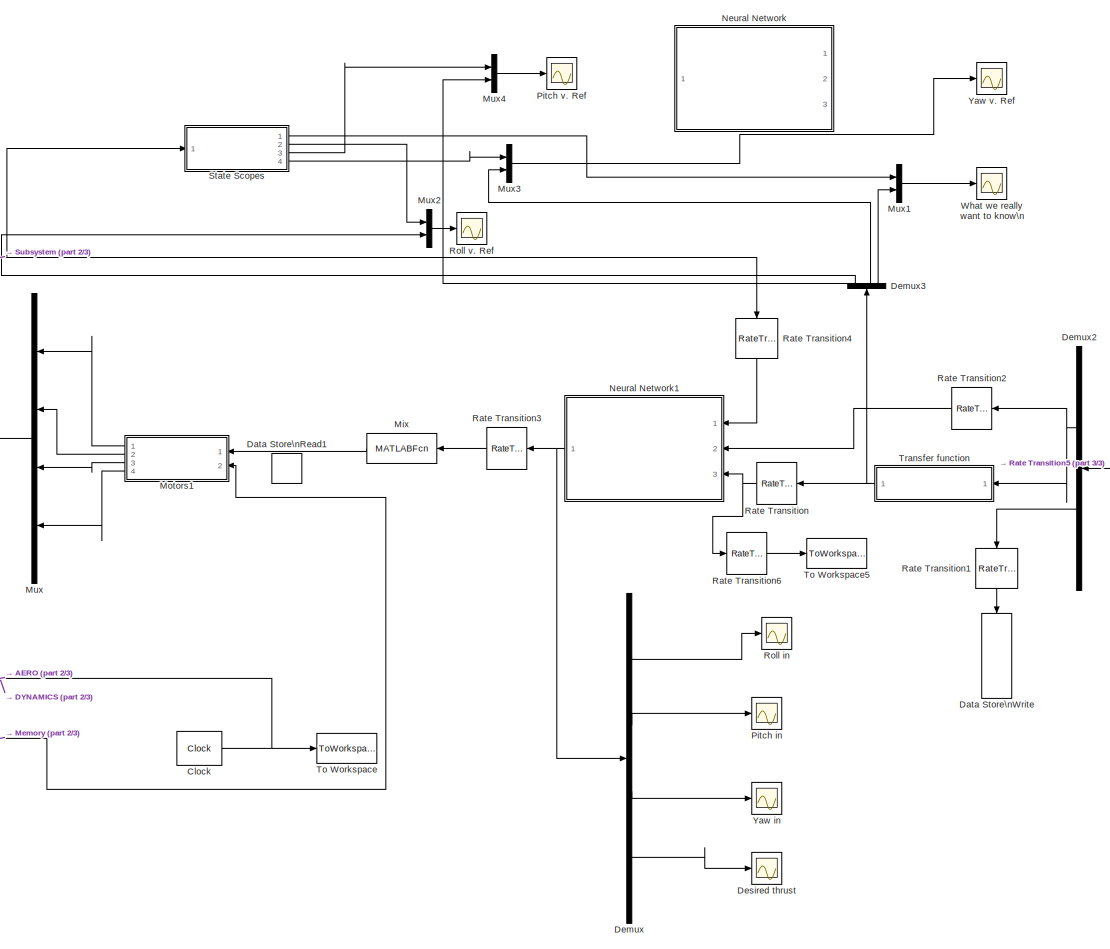
[diagram: root canvas - part 1/3, center side, full height]
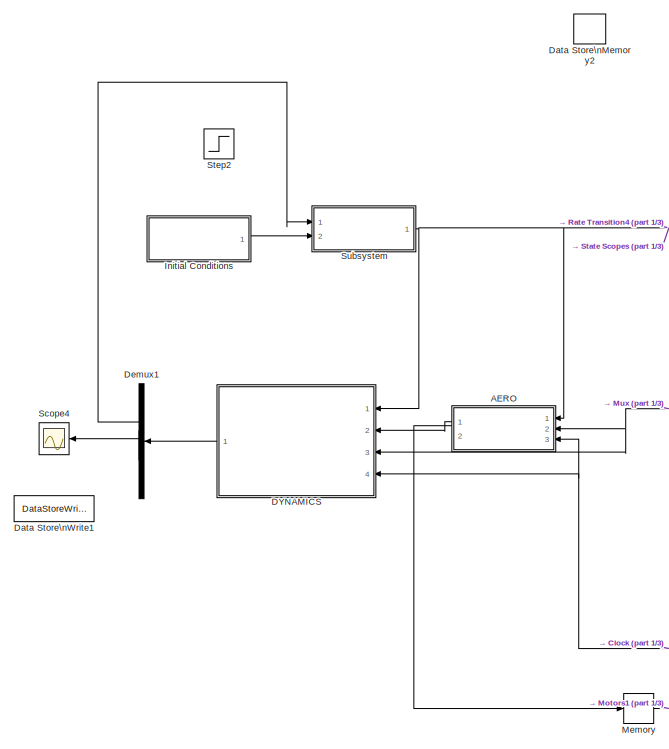
[diagram: root canvas - part 2/3, left side, full height]
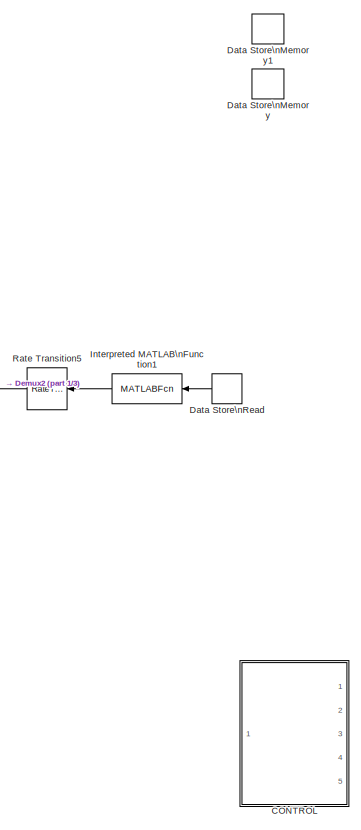
[diagram: root canvas - part 3/3, right side, full height]
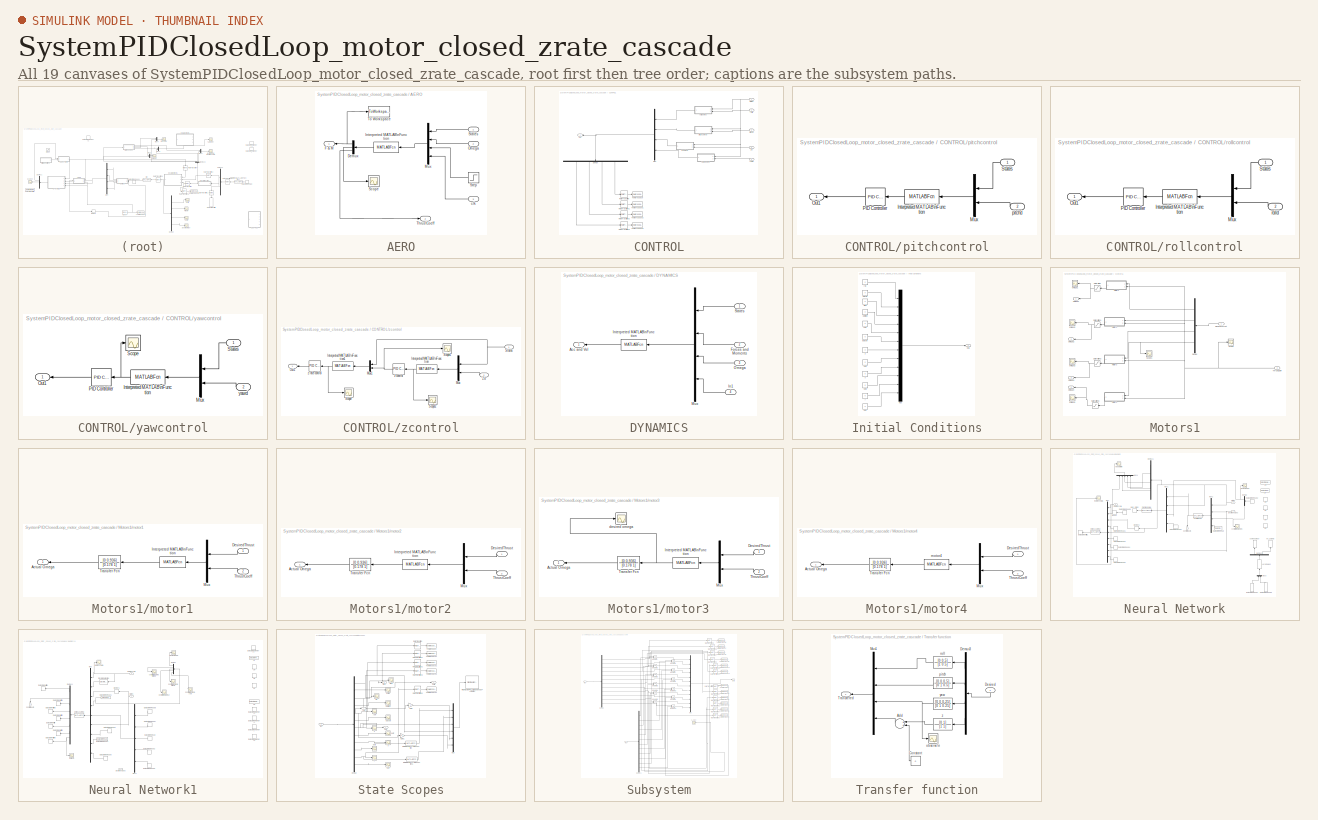
[diagram: thumbnail index - all 19 canvases of the model, root first then tree order]
MODEL SystemPIDClosedLoop_motor_closed_zrate_cascade
KIND model
BLOCK [SubSystem] AERO
  Ports = [3, 2]
  RequestExecContextInheritance = off
  SID = 9
BLOCK [Demux] AERO/Demux
  DisplayOption = bar
  Outputs = [24 1 1]
  Ports = [1, 3]
  SID = 403
BLOCK [Outport] AERO/F & M
  IconDisplay = Port number
  SID = 18
BLOCK [MATLABFcn] AERO/Interpreted MATLAB\nFunction
  MATLABFcn = aero
  Ports = [1, 1]
  SID = 708
BLOCK [Mux] AERO/Mux
  DisplayOption = bar
  Ports = [4, 1]
  SID = 12
BLOCK [Inport] AERO/Omega
  IconDisplay = Port number
  Port = 2
  SID = 14
BLOCK [Scope] AERO/Scope
  DataFormat = StructureWithTime
  Floating = off
  LimitDataPoints = off
  NumInputPorts = 1
  Ports = [1]
  SID = 404
  SampleTime = 0
  SaveName = ScopeData5
  ShowLegends = off
  YMax = 7.75e-07
  YMin = 4.25e-07
  ZoomMode = yonly
BLOCK [Inport] AERO/States
  IconDisplay = Port number
  SID = 13
BLOCK [Step] AERO/Step
  After = 4
  Before = 4
  SID = 15
  SampleTime = 0
  Time = 0
BLOCK [Outport] AERO/ThrustCoeff
  IconDisplay = Port number
  Port = 2
  SID = 411
BLOCK [ToWorkspace] AERO/To Workspace
  MaxDataPoints = inf
  Ports = [1]
  SID = 330
  SampleTime = -1
  SaveFormat = Structure
  VariableName = FandM
BLOCK [Inport] AERO/clk
  IconDisplay = Port number
  Port = 3
  SID = 271
BLOCK [SubSystem] CONTROL
  AttributesFormatString = %<Priority>
  Commented = on
  Ports = [5, 1]
  RequestExecContextInheritance = off
  SID = 29
BLOCK [Demux] CONTROL/Demux
  DisplayOption = bar
  Ports = [1, 4]
  SID = 542
BLOCK [Mux] CONTROL/Mux
  DisplayOption = bar
  Ports = [4, 1]
  SID = 102
BLOCK [Outport] CONTROL/Out
  IconDisplay = Port number
  SID = 101
BLOCK [RateTransition] CONTROL/Rate Transition
  OutPortSampleTime = 0.1
  SID = 530
BLOCK [RateTransition] CONTROL/Rate Transition1
  OutPortSampleTime = 0.1
  SID = 531
BLOCK [RateTransition] CONTROL/Rate Transition2
  OutPortSampleTime = 0.1
  SID = 532
BLOCK [RateTransition] CONTROL/Rate Transition3
  OutPortSampleTime = 0.1
  SID = 533
BLOCK [Inport] CONTROL/States
  IconDisplay = Port number
  SID = 32
BLOCK [ToWorkspace] CONTROL/To Workspace
  FixptAsFi = on
  MaxDataPoints = 10000
  Ports = [1]
  SID = 536
  SampleTime = -1
  Save2DSignal = 2-D array (concatenate along first dimension)
  SaveFormat = Timeseries
  VariableName = yawcontrol
BLOCK [ToWorkspace] CONTROL/To Workspace1
  FixptAsFi = on
  MaxDataPoints = 10000
  Ports = [1]
  SID = 537
  SampleTime = -1
  Save2DSignal = 3-D array (concatenate along third dimension)
  SaveFormat = Timeseries
  VariableName = zcontrol
BLOCK [ToWorkspace] CONTROL/To Workspace2
  FixptAsFi = on
  MaxDataPoints = 10000
  Ports = [1]
  SID = 538
  SampleTime = -1
  Save2DSignal = 3-D array (concatenate along third dimension)
  SaveFormat = Timeseries
  VariableName = pitchcontrol
BLOCK [ToWorkspace] CONTROL/To Workspace3
  FixptAsFi = on
  MaxDataPoints = 10000
  Ports = [1]
  SID = 539
  SampleTime = -1
  Save2DSignal = 3-D array (concatenate along third dimension)
  SaveFormat = Timeseries
  VariableName = rollcontrol
BLOCK [Inport] CONTROL/Zd
  IconDisplay = Port number
  Port = 4
  SID = 35
BLOCK [SubSystem] CONTROL/pitchcontrol
  Ports = [2, 1]
  RequestExecContextInheritance = off
  SID = 80
BLOCK [MATLABFcn] CONTROL/pitchcontrol/Interpreted MATLAB\nFunction
  MATLABFcn = pitcherr
  OutputDimensions = 1
  Ports = [1, 1]
  SID = 83
BLOCK [Mux] CONTROL/pitchcontrol/Mux
  DisplayOption = bar
  Inputs = 2
  Ports = [2, 1]
  SID = 84
BLOCK [Outport] CONTROL/pitchcontrol/Out1
  IconDisplay = Port number
  SID = 86
BLOCK [Reference] CONTROL/pitchcontrol/PID Controller  REF=simulink/Continuous/PID Controller
  AntiWindupMode = none
  Controller = PID
  D = 0.025
  DOutDataTypeStr = Inherit: Inherit via internal rule
  DOutMax = []
  DOutMin = []
  DParamDataTypeStr = Inherit: Inherit via internal rule
  DParamMax = []
  DParamMin = []
  ExternalReset = none
  FilterContinuousStateAttributes = ''
  FilterMethod = Forward Euler
  FilterOutDataTypeStr = Inherit: Inherit via internal rule
  FilterOutMax = []
  FilterOutMin = []
  FilterRTWStateStorageClass = Auto
  FilterStateMustResolveToSignalObject = off
  Form = Parallel
  I = 0
  IOutDataTypeStr = Inherit: Inherit via internal rule
  IOutMax = []
  IOutMin = []
  IParamDataTypeStr = Inherit: Inherit via internal rule
  IParamMax = []
  IParamMin = []
  IgnoreLimit = off
  InitialConditionForFilter = 0
  InitialConditionForIntegrator = 0
  InitialConditionSource = internal
  IntegratorContinuousStateAttributes = ''
  IntegratorMethod = Forward Euler
  IntegratorOutDataTypeStr = Inherit: Inherit via internal rule
  IntegratorOutMax = []
  IntegratorOutMin = []
  IntegratorRTWStateStorageClass = Auto
  IntegratorStateMustResolveToSignalObject = off
  Kb = 1
  KbOutDataTypeStr = Inherit: Inherit via internal rule
  KbOutMax = []
  KbOutMin = []
  KbParamDataTypeStr = Inherit: Inherit via internal rule
  KbParamMax = []
  KbParamMin = []
  Kt = 1
  KtOutDataTypeStr = Inherit: Inherit via internal rule
  KtOutMax = []
  KtOutMin = []
  KtParamDataTypeStr = Inherit: Inherit via internal rule
  KtParamMax = []
  KtParamMin = []
  LimitOutput = off
  LinearizeAsGain = off
  LockScale = off
  LowerSaturationLimit = -inf
  N = 25
  NOutDataTypeStr = Inherit: Inherit via internal rule
  NOutMax = []
  NOutMin = []
  NParamDataTypeStr = Inherit: Inherit via internal rule
  NParamMax = []
  NParamMin = []
  P = 0.005
  POutDataTypeStr = Inherit: Inherit via internal rule
  POutMax = []
  POutMin = []
  PParamDataTypeStr = Inherit: Inherit via internal rule
  PParamMax = []
  PParamMin = []
  Ports = [1, 1]
  RndMeth = Floor
  SID = 85
  SampleTime = 1
  SaturateOnIntegerOverflow = off
  SaturationOutDataTypeStr = Inherit: Same as input
  SaturationOutMax = []
  SaturationOutMin = []
  SourceBlock = simulink/Continuous/PID Controller
  SourceType = PID 1dof
  SumAccumDataTypeStr = Inherit: Inherit via internal rule
  SumDAccumDataTypeStr = Inherit: Inherit via internal rule
  SumDOutDataTypeStr = Inherit: Inherit via internal rule
  SumDOutMax = []
  SumDOutMin = []
  SumI1AccumDataTypeStr = Inherit: Inherit via internal rule
  SumI1OutDataTypeStr = Inherit: Inherit via internal rule
  SumI1OutMax = []
  SumI1OutMin = []
  SumI2AccumDataTypeStr = Inherit: Inherit via internal rule
  SumI2OutDataTypeStr = Inherit: Inherit via internal rule
  SumI2OutMax = []
  SumI2OutMin = []
  SumI3AccumDataTypeStr = Inherit: Inherit via internal rule
  SumI3OutDataTypeStr = Inherit: Inherit via internal rule
  SumI3OutMax = []
  SumI3OutMin = []
  SumOutDataTypeStr = Inherit: Inherit via internal rule
  SumOutMax = []
  SumOutMin = []
  TimeDomain = Continuous-time
  TrackingMode = off
  UpperSaturationLimit = inf
  ZeroCross = on
BLOCK [Inport] CONTROL/pitchcontrol/States
  IconDisplay = Port number
  SID = 81
BLOCK [Inport] CONTROL/pitchcontrol/pitchd
  IconDisplay = Port number
  Port = 2
  SID = 82
BLOCK [Inport] CONTROL/pitchd
  IconDisplay = Port number
  Port = 3
  SID = 34
BLOCK [SubSystem] CONTROL/rollcontrol
  Ports = [2, 1]
  RequestExecContextInheritance = off
  SID = 73
BLOCK [MATLABFcn] CONTROL/rollcontrol/Interpreted MATLAB\nFunction
  MATLABFcn = rollerr
  OutputDimensions = 1
  Ports = [1, 1]
  SID = 77
BLOCK [Mux] CONTROL/rollcontrol/Mux
  DisplayOption = bar
  Inputs = 2
  Ports = [2, 1]
  SID = 78
BLOCK [Outport] CONTROL/rollcontrol/Out1
  IconDisplay = Port number
  SID = 75
BLOCK [Reference] CONTROL/rollcontrol/PID Controller  REF=simulink/Continuous/PID Controller
  AntiWindupMode = none
  Controller = PID
  D = .025
  DOutDataTypeStr = Inherit: Inherit via internal rule
  DOutMax = []
  DOutMin = []
  DParamDataTypeStr = Inherit: Inherit via internal rule
  DParamMax = []
  DParamMin = []
  ExternalReset = none
  FilterContinuousStateAttributes = ''
  FilterMethod = Forward Euler
  FilterOutDataTypeStr = Inherit: Inherit via internal rule
  FilterOutMax = []
  FilterOutMin = []
  FilterRTWStateStorageClass = Auto
  FilterStateMustResolveToSignalObject = off
  Form = Parallel
  I = 0
  IOutDataTypeStr = Inherit: Inherit via internal rule
  IOutMax = []
  IOutMin = []
  IParamDataTypeStr = Inherit: Inherit via internal rule
  IParamMax = []
  IParamMin = []
  IgnoreLimit = off
  InitialConditionForFilter = 0
  InitialConditionForIntegrator = 0
  InitialConditionSource = internal
  IntegratorContinuousStateAttributes = ''
  IntegratorMethod = Forward Euler
  IntegratorOutDataTypeStr = Inherit: Inherit via internal rule
  IntegratorOutMax = []
  IntegratorOutMin = []
  IntegratorRTWStateStorageClass = Auto
  IntegratorStateMustResolveToSignalObject = off
  Kb = 1
  KbOutDataTypeStr = Inherit: Inherit via internal rule
  KbOutMax = []
  KbOutMin = []
  KbParamDataTypeStr = Inherit: Inherit via internal rule
  KbParamMax = []
  KbParamMin = []
  Kt = 1
  KtOutDataTypeStr = Inherit: Inherit via internal rule
  KtOutMax = []
  KtOutMin = []
  KtParamDataTypeStr = Inherit: Inherit via internal rule
  KtParamMax = []
  KtParamMin = []
  LimitOutput = off
  LinearizeAsGain = off
  LockScale = off
  LowerSaturationLimit = -inf
  N = 25
  NOutDataTypeStr = Inherit: Inherit via internal rule
  NOutMax = []
  NOutMin = []
  NParamDataTypeStr = Inherit: Inherit via internal rule
  NParamMax = []
  NParamMin = []
  P = .005
  POutDataTypeStr = Inherit: Inherit via internal rule
  POutMax = []
  POutMin = []
  PParamDataTypeStr = Inherit: Inherit via internal rule
  PParamMax = []
  PParamMin = []
  Ports = [1, 1]
  RndMeth = Floor
  SID = 79
  SampleTime = 1
  SaturateOnIntegerOverflow = off
  SaturationOutDataTypeStr = Inherit: Same as input
  SaturationOutMax = []
  SaturationOutMin = []
  SourceBlock = simulink/Continuous/PID Controller
  SourceType = PID 1dof
  SumAccumDataTypeStr = Inherit: Inherit via internal rule
  SumDAccumDataTypeStr = Inherit: Inherit via internal rule
  SumDOutDataTypeStr = Inherit: Inherit via internal rule
  SumDOutMax = []
  SumDOutMin = []
  SumI1AccumDataTypeStr = Inherit: Inherit via internal rule
  SumI1OutDataTypeStr = Inherit: Inherit via internal rule
  SumI1OutMax = []
  SumI1OutMin = []
  SumI2AccumDataTypeStr = Inherit: Inherit via internal rule
  SumI2OutDataTypeStr = Inherit: Inherit via internal rule
  SumI2OutMax = []
  SumI2OutMin = []
  SumI3AccumDataTypeStr = Inherit: Inherit via internal rule
  SumI3OutDataTypeStr = Inherit: Inherit via internal rule
  SumI3OutMax = []
  SumI3OutMin = []
  SumOutDataTypeStr = Inherit: Inherit via internal rule
  SumOutMax = []
  SumOutMin = []
  TimeDomain = Continuous-time
  TrackingMode = off
  UpperSaturationLimit = inf
  ZeroCross = on
BLOCK [Inport] CONTROL/rollcontrol/States
  IconDisplay = Port number
  SID = 74
BLOCK [Inport] CONTROL/rollcontrol/rolld
  IconDisplay = Port number
  Port = 2
  SID = 76
BLOCK [Inport] CONTROL/rolld
  IconDisplay = Port number
  Port = 2
  SID = 33
BLOCK [SubSystem] CONTROL/yawcontrol
  Ports = [2, 1]
  RequestExecContextInheritance = off
  SID = 87
BLOCK [MATLABFcn] CONTROL/yawcontrol/Interpreted MATLAB\nFunction
  MATLABFcn = yawerr
  OutputDimensions = 1
  Ports = [1, 1]
  SID = 90
BLOCK [Mux] CONTROL/yawcontrol/Mux
  DisplayOption = bar
  Inputs = 2
  Ports = [2, 1]
  SID = 91
BLOCK [Outport] CONTROL/yawcontrol/Out1
  IconDisplay = Port number
  SID = 93
BLOCK [Reference] CONTROL/yawcontrol/PID Controller  REF=simulink/Continuous/PID Controller
  AntiWindupMode = none
  Controller = PID
  D = 0.25
  DOutDataTypeStr = Inherit: Inherit via internal rule
  DOutMax = []
  DOutMin = []
  DParamDataTypeStr = Inherit: Inherit via internal rule
  DParamMax = []
  DParamMin = []
  ExternalReset = none
  FilterContinuousStateAttributes = ''
  FilterMethod = Forward Euler
  FilterOutDataTypeStr = Inherit: Inherit via internal rule
  FilterOutMax = []
  FilterOutMin = []
  FilterRTWStateStorageClass = Auto
  FilterStateMustResolveToSignalObject = off
  Form = Parallel
  I = 0
  IOutDataTypeStr = Inherit: Inherit via internal rule
  IOutMax = []
  IOutMin = []
  IParamDataTypeStr = Inherit: Inherit via internal rule
  IParamMax = []
  IParamMin = []
  IgnoreLimit = off
  InitialConditionForFilter = 0
  InitialConditionForIntegrator = 0
  InitialConditionSource = internal
  IntegratorContinuousStateAttributes = ''
  IntegratorMethod = Forward Euler
  IntegratorOutDataTypeStr = Inherit: Inherit via internal rule
  IntegratorOutMax = []
  IntegratorOutMin = []
  IntegratorRTWStateStorageClass = Auto
  IntegratorStateMustResolveToSignalObject = off
  Kb = 1
  KbOutDataTypeStr = Inherit: Inherit via internal rule
  KbOutMax = []
  KbOutMin = []
  KbParamDataTypeStr = Inherit: Inherit via internal rule
  KbParamMax = []
  KbParamMin = []
  Kt = 1
  KtOutDataTypeStr = Inherit: Inherit via internal rule
  KtOutMax = []
  KtOutMin = []
  KtParamDataTypeStr = Inherit: Inherit via internal rule
  KtParamMax = []
  KtParamMin = []
  LimitOutput = off
  LinearizeAsGain = off
  LockScale = off
  LowerSaturationLimit = -inf
  N = 25
  NOutDataTypeStr = Inherit: Inherit via internal rule
  NOutMax = []
  NOutMin = []
  NParamDataTypeStr = Inherit: Inherit via internal rule
  NParamMax = []
  NParamMin = []
  P = 0.05
  POutDataTypeStr = Inherit: Inherit via internal rule
  POutMax = []
  POutMin = []
  PParamDataTypeStr = Inherit: Inherit via internal rule
  PParamMax = []
  PParamMin = []
  Ports = [1, 1]
  RndMeth = Floor
  SID = 92
  SampleTime = 1
  SaturateOnIntegerOverflow = off
  SaturationOutDataTypeStr = Inherit: Same as input
  SaturationOutMax = []
  SaturationOutMin = []
  SourceBlock = simulink/Continuous/PID Controller
  SourceType = PID 1dof
  SumAccumDataTypeStr = Inherit: Inherit via internal rule
  SumDAccumDataTypeStr = Inherit: Inherit via internal rule
  SumDOutDataTypeStr = Inherit: Inherit via internal rule
  SumDOutMax = []
  SumDOutMin = []
  SumI1AccumDataTypeStr = Inherit: Inherit via internal rule
  SumI1OutDataTypeStr = Inherit: Inherit via internal rule
  SumI1OutMax = []
  SumI1OutMin = []
  SumI2AccumDataTypeStr = Inherit: Inherit via internal rule
  SumI2OutDataTypeStr = Inherit: Inherit via internal rule
  SumI2OutMax = []
  SumI2OutMin = []
  SumI3AccumDataTypeStr = Inherit: Inherit via internal rule
  SumI3OutDataTypeStr = Inherit: Inherit via internal rule
  SumI3OutMax = []
  SumI3OutMin = []
  SumOutDataTypeStr = Inherit: Inherit via internal rule
  SumOutMax = []
  SumOutMin = []
  TimeDomain = Continuous-time
  TrackingMode = off
  UpperSaturationLimit = inf
  ZeroCross = on
BLOCK [Scope] CONTROL/yawcontrol/Scope
  DataFormat = StructureWithTime
  Floating = off
  NumInputPorts = 1
  Ports = [1]
  SID = 171
  SampleTime = 0
  SaveName = ScopeData17
  ShowLegends = off
BLOCK [Inport] CONTROL/yawcontrol/States
  IconDisplay = Port number
  SID = 88
BLOCK [Inport] CONTROL/yawcontrol/yawd
  IconDisplay = Port number
  Port = 2
  SID = 89
BLOCK [Inport] CONTROL/yawd
  IconDisplay = Port number
  Port = 5
  SID = 36
BLOCK [SubSystem] CONTROL/zcontrol
  Ports = [2, 1]
  RequestExecContextInheritance = off
  SID = 94
BLOCK [MATLABFcn] CONTROL/zcontrol/Interpreted MATLAB\nFunction
  MATLABFcn = zerr
  OutputDimensions = 1
  Ports = [1, 1]
  SID = 97
BLOCK [MATLABFcn] CONTROL/zcontrol/Interpreted MATLAB\nFunction1
  MATLABFcn = zrateerr
  Ports = [1, 1]
  SID = 450
BLOCK [Mux] CONTROL/zcontrol/Mux
  DisplayOption = bar
  Inputs = 2
  Ports = [2, 1]
  SID = 98
BLOCK [Mux] CONTROL/zcontrol/Mux1
  DisplayOption = bar
  Inputs = 2
  Ports = [2, 1]
  SID = 451
BLOCK [Outport] CONTROL/zcontrol/Out1
  IconDisplay = Port number
  SID = 100
BLOCK [Scope] CONTROL/zcontrol/Scope
  DataFormat = StructureWithTime
  Floating = off
  LimitDataPoints = off
  NumInputPorts = 1
  Ports = [1]
  SID = 452
  SampleTime = 0
  SaveName = ScopeData25
  ShowLegends = off
BLOCK [Scope] CONTROL/zcontrol/Scope1
  DataFormat = StructureWithTime
  Floating = off
  LimitDataPoints = off
  NumInputPorts = 1
  Ports = [1]
  SID = 429
  SampleTime = 0
  SaveName = ScopeData24
  ShowLegends = off
  YMax = 30
  YMin = -30
BLOCK [Scope] CONTROL/zcontrol/Scope2
  DataFormat = StructureWithTime
  Floating = off
  LimitDataPoints = off
  NumInputPorts = 1
  Ports = [1]
  SID = 440
  SampleTime = 0
  SaveName = ScopeData27
  ShowLegends = off
BLOCK [Inport] CONTROL/zcontrol/States
  IconDisplay = Port number
  SID = 95
BLOCK [Inport] CONTROL/zcontrol/Zd
  IconDisplay = Port number
  Port = 2
  SID = 96
BLOCK [Reference] CONTROL/zcontrol/z control  REF=simulink/Continuous/PID Controller
  AntiWindupMode = clamping
  Controller = PID
  D = 0
  DOutDataTypeStr = Inherit: Inherit via internal rule
  DOutMax = []
  DOutMin = []
  DParamDataTypeStr = Inherit: Inherit via internal rule
  DParamMax = []
  DParamMin = []
  ExternalReset = none
  FilterContinuousStateAttributes = ''
  FilterMethod = Forward Euler
  FilterOutDataTypeStr = Inherit: Inherit via internal rule
  FilterOutMax = []
  FilterOutMin = []
  FilterRTWStateStorageClass = Auto
  FilterStateMustResolveToSignalObject = off
  Form = Parallel
  I = 0
  IOutDataTypeStr = Inherit: Inherit via internal rule
  IOutMax = []
  IOutMin = []
  IParamDataTypeStr = Inherit: Inherit via internal rule
  IParamMax = []
  IParamMin = []
  IgnoreLimit = off
  InitialConditionForFilter = 0
  InitialConditionForIntegrator = 0
  InitialConditionSource = internal
  IntegratorContinuousStateAttributes = ''
  IntegratorMethod = Forward Euler
  IntegratorOutDataTypeStr = Inherit: Inherit via internal rule
  IntegratorOutMax = []
  IntegratorOutMin = []
  IntegratorRTWStateStorageClass = Auto
  IntegratorStateMustResolveToSignalObject = off
  Kb = 1
  KbOutDataTypeStr = Inherit: Inherit via internal rule
  KbOutMax = []
  KbOutMin = []
  KbParamDataTypeStr = Inherit: Inherit via internal rule
  KbParamMax = []
  KbParamMin = []
  Kt = 1
  KtOutDataTypeStr = Inherit: Inherit via internal rule
  KtOutMax = []
  KtOutMin = []
  KtParamDataTypeStr = Inherit: Inherit via internal rule
  KtParamMax = []
  KtParamMin = []
  LimitOutput = on
  LinearizeAsGain = off
  LockScale = off
  LowerSaturationLimit = -1.6
  N = 100
  NOutDataTypeStr = Inherit: Inherit via internal rule
  NOutMax = []
  NOutMin = []
  NParamDataTypeStr = Inherit: Inherit via internal rule
  NParamMax = []
  NParamMin = []
  P = 1
  POutDataTypeStr = Inherit: Inherit via internal rule
  POutMax = []
  POutMin = []
  PParamDataTypeStr = Inherit: Inherit via internal rule
  PParamMax = []
  PParamMin = []
  Ports = [1, 1]
  RndMeth = Floor
  SID = 99
  SampleTime = 1
  SaturateOnIntegerOverflow = off
  SaturationOutDataTypeStr = Inherit: Same as input
  SaturationOutMax = []
  SaturationOutMin = []
  SourceBlock = simulink/Continuous/PID Controller
  SourceType = PID 1dof
  SumAccumDataTypeStr = Inherit: Inherit via internal rule
  SumDAccumDataTypeStr = Inherit: Inherit via internal rule
  SumDOutDataTypeStr = Inherit: Inherit via internal rule
  SumDOutMax = []
  SumDOutMin = []
  SumI1AccumDataTypeStr = Inherit: Inherit via internal rule
  SumI1OutDataTypeStr = Inherit: Inherit via internal rule
  SumI1OutMax = []
  SumI1OutMin = []
  SumI2AccumDataTypeStr = Inherit: Inherit via internal rule
  SumI2OutDataTypeStr = Inherit: Inherit via internal rule
  SumI2OutMax = []
  SumI2OutMin = []
  SumI3AccumDataTypeStr = Inherit: Inherit via internal rule
  SumI3OutDataTypeStr = Inherit: Inherit via internal rule
  SumI3OutMax = []
  SumI3OutMin = []
  SumOutDataTypeStr = Inherit: Inherit via internal rule
  SumOutMax = []
  SumOutMin = []
  TimeDomain = Continuous-time
  TrackingMode = off
  UpperSaturationLimit = 2.5
  ZeroCross = on
BLOCK [Reference] CONTROL/zcontrol/z rate control  REF=simulink/Continuous/PID Controller
  AntiWindupMode = clamping
  Controller = PID
  D = 4
  DOutDataTypeStr = Inherit: Inherit via internal rule
  DOutMax = []
  DOutMin = []
  DParamDataTypeStr = Inherit: Inherit via internal rule
  DParamMax = []
  DParamMin = []
  ExternalReset = none
  FilterContinuousStateAttributes = ''
  FilterMethod = Forward Euler
  FilterOutDataTypeStr = Inherit: Inherit via internal rule
  FilterOutMax = []
  FilterOutMin = []
  FilterRTWStateStorageClass = Auto
  FilterStateMustResolveToSignalObject = off
  Form = Parallel
  I = 2
  IOutDataTypeStr = Inherit: Inherit via internal rule
  IOutMax = []
  IOutMin = []
  IParamDataTypeStr = Inherit: Inherit via internal rule
  IParamMax = []
  IParamMin = []
  IgnoreLimit = off
  InitialConditionForFilter = 0
  InitialConditionForIntegrator = 0
  InitialConditionSource = internal
  IntegratorContinuousStateAttributes = ''
  IntegratorMethod = Forward Euler
  IntegratorOutDataTypeStr = Inherit: Inherit via internal rule
  IntegratorOutMax = []
  IntegratorOutMin = []
  IntegratorRTWStateStorageClass = Auto
  IntegratorStateMustResolveToSignalObject = off
  Kb = 1
  KbOutDataTypeStr = Inherit: Inherit via internal rule
  KbOutMax = []
  KbOutMin = []
  KbParamDataTypeStr = Inherit: Inherit via internal rule
  KbParamMax = []
  KbParamMin = []
  Kt = 1
  KtOutDataTypeStr = Inherit: Inherit via internal rule
  KtOutMax = []
  KtOutMin = []
  KtParamDataTypeStr = Inherit: Inherit via internal rule
  KtParamMax = []
  KtParamMin = []
  LimitOutput = off
  LinearizeAsGain = off
  LockScale = off
  LowerSaturationLimit = -2.5
  N = 100
  NOutDataTypeStr = Inherit: Inherit via internal rule
  NOutMax = []
  NOutMin = []
  NParamDataTypeStr = Inherit: Inherit via internal rule
  NParamMax = []
  NParamMin = []
  P = 5
  POutDataTypeStr = Inherit: Inherit via internal rule
  POutMax = []
  POutMin = []
  PParamDataTypeStr = Inherit: Inherit via internal rule
  PParamMax = []
  PParamMin = []
  Ports = [1, 1]
  RndMeth = Floor
  SID = 453
  SampleTime = 1
  SaturateOnIntegerOverflow = off
  SaturationOutDataTypeStr = Inherit: Same as input
  SaturationOutMax = []
  SaturationOutMin = []
  SourceBlock = simulink/Continuous/PID Controller
  SourceType = PID 1dof
  SumAccumDataTypeStr = Inherit: Inherit via internal rule
  SumDAccumDataTypeStr = Inherit: Inherit via internal rule
  SumDOutDataTypeStr = Inherit: Inherit via internal rule
  SumDOutMax = []
  SumDOutMin = []
  SumI1AccumDataTypeStr = Inherit: Inherit via internal rule
  SumI1OutDataTypeStr = Inherit: Inherit via internal rule
  SumI1OutMax = []
  SumI1OutMin = []
  SumI2AccumDataTypeStr = Inherit: Inherit via internal rule
  SumI2OutDataTypeStr = Inherit: Inherit via internal rule
  SumI2OutMax = []
  SumI2OutMin = []
  SumI3AccumDataTypeStr = Inherit: Inherit via internal rule
  SumI3OutDataTypeStr = Inherit: Inherit via internal rule
  SumI3OutMax = []
  SumI3OutMin = []
  SumOutDataTypeStr = Inherit: Inherit via internal rule
  SumOutMax = []
  SumOutMin = []
  TimeDomain = Continuous-time
  TrackingMode = off
  UpperSaturationLimit = 2.5
  ZeroCross = on
BLOCK [Clock] Clock
  Decimation = 1
  DisplayTime = on
  SID = 269
BLOCK [SubSystem] DYNAMICS
  Ports = [4, 1]
  RequestExecContextInheritance = off
  SID = 1
BLOCK [Outport] DYNAMICS/Acc and Vel
  IconDisplay = Port number
  SID = 3
BLOCK [Inport] DYNAMICS/Forces and Moments
  IconDisplay = Port number
  Port = 2
  SID = 6
BLOCK [Inport] DYNAMICS/In1
  IconDisplay = Port number
  Port = 4
  SID = 851
BLOCK [MATLABFcn] DYNAMICS/Interpreted MATLAB\nFunction
  MATLABFcn = plantdynamics
  OutputDimensions = 13
  Ports = [1, 1]
  SID = 709
BLOCK [Mux] DYNAMICS/Mux
  DisplayOption = bar
  Ports = [4, 1]
  SID = 4
BLOCK [Inport] DYNAMICS/Omega
  IconDisplay = Port number
  Port = 3
  SID = 7
BLOCK [Inport] DYNAMICS/States
  IconDisplay = Port number
  SID = 5
BLOCK [DataStoreMemory] Data Store\nMemory
  DataStoreName = countervariable67
  SID = 471
BLOCK [DataStoreMemory] Data Store\nMemory1
  DataStoreName = Om_old
  ReadBeforeWriteMsg = warning
  SID = 701
  WriteAfterReadMsg = warning
  WriteAfterWriteMsg = warning
BLOCK [DataStoreMemory] Data Store\nMemory2
  DataStoreName = b_test
  InitialValue = 0.000031752
  ReadBeforeWriteMsg = warning
  SID = 801
  WriteAfterReadMsg = warning
  WriteAfterWriteMsg = warning
BLOCK [DataStoreRead] Data Store\nRead
  DataStoreElements = countervariable67
  DataStoreName = countervariable67
  Ports = [0, 1]
  SID = 472
  SampleTime = 0.01
BLOCK [DataStoreRead] Data Store\nRead1
  DataStoreElements = b_test
  DataStoreName = b_test
  Ports = [0, 1]
  SID = 802
BLOCK [DataStoreWrite] Data Store\nWrite
  DataStoreElements = countervariable67
  DataStoreName = countervariable67
  Ports = [1]
  SID = 599
BLOCK [DataStoreWrite] Data Store\nWrite1
  DataStoreElements = Om_old
  DataStoreName = Om_old
  Ports = [1]
  SID = 703
BLOCK [Demux] Demux
  DisplayOption = bar
  Ports = [1, 4]
  SID = 113
BLOCK [Demux] Demux1
  DisplayOption = bar
  Outputs = [12 1]
  Ports = [1, 2]
  SID = 137
BLOCK [Demux] Demux2
  DisplayOption = bar
  Outputs = [4 1]
  Ports = [1, 2]
  SID = 598
BLOCK [Demux] Demux3
  DisplayOption = bar
  Outputs = [1 1 1 1]
  Ports = [1, 4]
  SID = 832
BLOCK [Scope] Desired thrust
  DataFormat = StructureWithTime
  Floating = off
  LimitDataPoints = off
  NumInputPorts = 1
  Ports = [1]
  SID = 117
  SampleTime = 0
  SaveName = ScopeData3
  ShowLegends = off
  YMax = 12
  YMin = 4
BLOCK [SubSystem] Initial Conditions
  Ports = [0, 1]
  RequestExecContextInheritance = off
  SID = 45
BLOCK [Mux] Initial Conditions/Mux
  DisplayOption = bar
  Inputs = 12
  Ports = [12, 1]
  SID = 48
BLOCK [Outport] Initial Conditions/Out1
  IconDisplay = Port number
  SID = 47
BLOCK [Constant] Initial Conditions/dotpitch
  SID = 53
  Value = 0
BLOCK [Constant] Initial Conditions/dotroll
  SID = 51
  Value = 0
BLOCK [Constant] Initial Conditions/dotx
  SID = 59
  Value = 0
BLOCK [Constant] Initial Conditions/doty
  SID = 50
  Value = 0
BLOCK [Constant] Initial Conditions/dotyaw
  SID = 55
  Value = 0
BLOCK [Constant] Initial Conditions/dotz
  SID = 57
  Value = 0
BLOCK [Constant] Initial Conditions/pitch
  SID = 52
  Value = 0
BLOCK [Constant] Initial Conditions/roll
  SID = 49
  Value = 0
BLOCK [Constant] Initial Conditions/x
  SID = 58
  Value = 0
BLOCK [Constant] Initial Conditions/y
  SID = 60
  Value = 0
BLOCK [Constant] Initial Conditions/yaw
  SID = 54
  Value = 0
BLOCK [Constant] Initial Conditions/z
  SID = 56
  Value = 0
BLOCK [MATLABFcn] Interpreted MATLAB\nFunction1
  MATLABFcn = testinputs
  OutputDimensions = 5
  Ports = [1, 1]
  SID = 597
BLOCK [Memory] Memory
  InheritSampleTime = on
  SID = 413
  X0 = 3.1751e-5
BLOCK [MATLABFcn] Mix
  MATLABFcn = mix
  OutputDimensions = 4
  Ports = [1, 1]
  SID = 710
BLOCK [SubSystem] Motors1
  Ports = [2, 4]
  RequestExecContextInheritance = off
  SID = 487
BLOCK [Demux] Motors1/Demux
  DisplayOption = bar
  Ports = [1, 4]
  SID = 490
BLOCK [Inport] Motors1/DesiredThrust
  IconDisplay = Port number
  SID = 488
BLOCK [Outport] Motors1/Omega1
  IconDisplay = Port number
  SID = 525
BLOCK [Outport] Motors1/Omega2
  IconDisplay = Port number
  Port = 2
  SID = 526
BLOCK [Outport] Motors1/Omega3
  IconDisplay = Port number
  Port = 3
  SID = 527
BLOCK [Outport] Motors1/Omega4
  IconDisplay = Port number
  Port = 4
  SID = 528
BLOCK [Saturate] Motors1/Saturation
  InputPortMap = u0
  LowerLimit = 0
  Ports = [1, 1]
  SID = 839
  UpperLimit = 500
BLOCK [Saturate] Motors1/Saturation1
  InputPortMap = u0
  LowerLimit = 0
  Ports = [1, 1]
  SID = 841
  UpperLimit = 500
BLOCK [Saturate] Motors1/Saturation2
  InputPortMap = u0
  LowerLimit = 0
  Ports = [1, 1]
  SID = 842
  UpperLimit = 500
BLOCK [Saturate] Motors1/Saturation3
  InputPortMap = u0
  LowerLimit = 0
  Ports = [1, 1]
  SID = 843
  UpperLimit = 500
BLOCK [Scope] Motors1/Scope
  DataFormat = StructureWithTime
  Floating = off
  LimitDataPoints = off
  NumInputPorts = 1
  Ports = [1]
  SID = 491
  SampleTime = 0
  SaveName = ScopeData7
  ShowLegends = off
  YMax = 0.00015
  YMin = 1e-05
  ZoomMode = yonly
BLOCK [Scope] Motors1/Scope1
  DataFormat = StructureWithTime
  Floating = off
  LimitDataPoints = off
  NumInputPorts = 1
  Ports = [1]
  SID = 492
  SampleTime = 0
  SaveName = ScopeData26
  ShowLegends = off
BLOCK [Inport] Motors1/ThrustCOeff
  IconDisplay = Port number
  Port = 2
  SID = 489
BLOCK [SubSystem] Motors1/motor1
  Ports = [2, 1]
  RequestExecContextInheritance = off
  SID = 493
BLOCK [Outport] Motors1/motor1/Actual Omega
  IconDisplay = Port number
  SID = 499
BLOCK [Inport] Motors1/motor1/DesiredThrust
  IconDisplay = Port number
  SID = 494
BLOCK [MATLABFcn] Motors1/motor1/Interpreted MATLAB\nFunction
  MATLABFcn = motor1
  Ports = [1, 1]
  SID = 704
BLOCK [Mux] Motors1/motor1/Mux
  DisplayOption = bar
  Inputs = 2
  Ports = [2, 1]
  SID = 497
BLOCK [Inport] Motors1/motor1/ThrustCoeff
  IconDisplay = Port number
  Port = 2
  PortDimensions = 1
  SID = 495
BLOCK [TransferFcn] Motors1/motor1/Transfer Fcn
  Denominator = [0.178 1]
  Numerator = [0 0.936]
  SID = 498
BLOCK [SubSystem] Motors1/motor2
  Ports = [2, 1]
  RequestExecContextInheritance = off
  SID = 500
BLOCK [Outport] Motors1/motor2/Actual Omega
  IconDisplay = Port number
  SID = 506
BLOCK [Inport] Motors1/motor2/DesiredThrust
  IconDisplay = Port number
  SID = 501
BLOCK [MATLABFcn] Motors1/motor2/Interpreted MATLAB\nFunction
  MATLABFcn = motor2
  Ports = [1, 1]
  SID = 705
BLOCK [Mux] Motors1/motor2/Mux
  DisplayOption = bar
  Inputs = 2
  Ports = [2, 1]
  SID = 504
BLOCK [Inport] Motors1/motor2/ThrustCoeff
  IconDisplay = Port number
  Port = 2
  PortDimensions = 1
  SID = 502
BLOCK [TransferFcn] Motors1/motor2/Transfer Fcn
  Denominator = [0.178 1]
  Numerator = [0 0.936]
  SID = 505
BLOCK [SubSystem] Motors1/motor3
  Ports = [2, 1]
  RequestExecContextInheritance = off
  SID = 507
BLOCK [Outport] Motors1/motor3/Actual Omega
  IconDisplay = Port number
  SID = 513
BLOCK [Inport] Motors1/motor3/DesiredThrust
  IconDisplay = Port number
  SID = 508
BLOCK [MATLABFcn] Motors1/motor3/Interpreted MATLAB\nFunction
  MATLABFcn = motor3
  Ports = [1, 1]
  SID = 706
BLOCK [Mux] Motors1/motor3/Mux
  DisplayOption = bar
  Inputs = 2
  Ports = [2, 1]
  SID = 511
BLOCK [Inport] Motors1/motor3/ThrustCoeff
  IconDisplay = Port number
  Port = 2
  PortDimensions = 1
  SID = 509
BLOCK [TransferFcn] Motors1/motor3/Transfer Fcn
  Denominator = [0.178 1]
  Numerator = [0 0.936]
  SID = 512
BLOCK [Scope] Motors1/motor3/desired omega
  DataFormat = StructureWithTime
  Floating = off
  LimitDataPoints = off
  NumInputPorts = 1
  Ports = [1]
  SID = 800
  SampleTime = 0
  SaveName = ScopeData29
  ShowLegends = off
  YMax = 350
  YMin = 0
BLOCK [SubSystem] Motors1/motor4
  Ports = [2, 1]
  RequestExecContextInheritance = off
  SID = 514
BLOCK [Outport] Motors1/motor4/Actual Omega
  IconDisplay = Port number
  SID = 520
BLOCK [Inport] Motors1/motor4/DesiredThrust
  IconDisplay = Port number
  SID = 515
BLOCK [Mux] Motors1/motor4/Mux
  DisplayOption = bar
  Inputs = 2
  Ports = [2, 1]
  SID = 518
BLOCK [Inport] Motors1/motor4/ThrustCoeff
  IconDisplay = Port number
  Port = 2
  PortDimensions = 1
  SID = 516
BLOCK [TransferFcn] Motors1/motor4/Transfer Fcn
  Denominator = [0.178 1]
  Numerator = [0 0.936]
  SID = 519
BLOCK [MATLABFcn] Motors1/motor4/motor4
  MATLABFcn = motor4
  Ports = [1, 1]
  SID = 707
BLOCK [Scope] Motors1/omega1
  DataFormat = StructureWithTime
  Floating = off
  LimitDataPoints = off
  NumInputPorts = 1
  Ports = [1]
  SID = 521
  SampleTime = 0
  SaveName = ScopeData9
  ShowLegends = off
  YMax = 325
  YMin = 0
BLOCK [Scope] Motors1/omega2
  DataFormat = StructureWithTime
  Floating = off
  LimitDataPoints = off
  NumInputPorts = 1
  Ports = [1]
  SID = 522
  SampleTime = 0
  SaveName = ScopeData11
  ShowLegends = off
  YMax = 450
  YMin = 0
BLOCK [Scope] Motors1/omega3
  DataFormat = StructureWithTime
  Floating = off
  LimitDataPoints = off
  NumInputPorts = 1
  Ports = [1]
  SID = 523
  SampleTime = 0
  SaveName = ScopeData18
  ShowLegends = off
  YMax = 450
  YMin = 0
BLOCK [Scope] Motors1/omega4
  DataFormat = StructureWithTime
  Floating = off
  LimitDataPoints = off
  NumInputPorts = 1
  Ports = [1]
  SID = 524
  SampleTime = 0
  SaveName = ScopeData20
  ShowLegends = off
  YMax = 450
  YMin = 0
BLOCK [Mux] Mux
  DisplayOption = bar
  Ports = [4, 1]
  SID = 529
BLOCK [Mux] Mux1
  DisplayOption = bar
  Inputs = 2
  Ports = [2, 1]
  SID = 829
BLOCK [Mux] Mux2
  DisplayOption = bar
  Inputs = 2
  Ports = [2, 1]
  SID = 837
BLOCK [Mux] Mux3
  DisplayOption = bar
  Inputs = 2
  Ports = [2, 1]
  SID = 847
BLOCK [Mux] Mux4
  DisplayOption = bar
  Inputs = 2
  Ports = [2, 1]
  SID = 848
BLOCK [SubSystem] Neural Network
  Commented = on
  Ports = [3, 1]
  RequestExecContextInheritance = off
  SID = 610
BLOCK [DataStoreMemory] Neural Network/1\n
  DataStoreName = nn_params
  InitialValue = ones((14+1)*44+(44+1)*44+(44+1)*4+((12+1)*38+(38+1)*38+(38+1)*4),1)
  ReadBeforeWriteMsg = warning
  SID = 638
  WriteAfterReadMsg = warning
  WriteAfterWriteMsg = warning
BLOCK [DataStoreMemory] Neural Network/2\n
  DataStoreName = somenumber
  ReadBeforeWriteMsg = warning
  SID = 633
  WriteAfterReadMsg = warning
  WriteAfterWriteMsg = warning
BLOCK [DataStoreMemory] Neural Network/3\n
  DataStoreName = plant
  InitialValue = [14 44 4]
  ReadBeforeWriteMsg = warning
  SID = 641
  WriteAfterReadMsg = warning
  WriteAfterWriteMsg = warning
BLOCK [DataStoreMemory] Neural Network/4\n
  DataStoreName = controller
  InitialValue = [12 38 4]
  ReadBeforeWriteMsg = warning
  SID = 644
  WriteAfterReadMsg = warning
  WriteAfterWriteMsg = warning
BLOCK [DataStoreMemory] Neural Network/5\n
  DataStoreName = alpha
  InitialValue = [0.001 0.01 0.1 0.1]
  ReadBeforeWriteMsg = warning
  SID = 651
  WriteAfterReadMsg = warning
  WriteAfterWriteMsg = warning
BLOCK [DataStoreMemory] Neural Network/6\n
  DataStoreName = pred_states
  InitialValue = [0;0;0;0]
  ReadBeforeWriteMsg = warning
  SID = 684
  WriteAfterReadMsg = warning
  WriteAfterWriteMsg = warning
BLOCK [Outport] Neural Network/Control Inputs
  IconDisplay = Port number
  SID = 614
BLOCK [MATLABFcn] Neural Network/Controller ANN
  MATLABFcn = controller_ANN
  Ports = [1, 1]
  SID = 608
BLOCK [DataStoreRead] Neural Network/Data Store\nRead
  DataStoreElements = controller(:)
  DataStoreName = controller
  Ports = [0, 1]
  SID = 653
  SampleTime = 0.001
BLOCK [DataStoreRead] Neural Network/Data Store\nRead1
  DataStoreElements = nn_params
  DataStoreName = nn_params
  Ports = [0, 1]
  SID = 645
  SampleTime = 0.001
BLOCK [DataStoreRead] Neural Network/Data Store\nRead2
  DataStoreElements = nn_params
  DataStoreName = nn_params
  Ports = [0, 1]
  SID = 637
  SampleTime = 0.001
BLOCK [DataStoreRead] Neural Network/Data Store\nRead3
  DataStoreElements = plant
  DataStoreName = plant
  Ports = [0, 1]
  SID = 646
  SampleTime = 0.001
BLOCK [DataStoreRead] Neural Network/Data Store\nRead4
  DataStoreElements = controller
  DataStoreName = controller
  Ports = [0, 1]
  SID = 647
  SampleTime = 0.001
BLOCK [DataStoreRead] Neural Network/Data Store\nRead5
  DataStoreElements = alpha
  DataStoreName = alpha
  Ports = [0, 1]
  SID = 650
  SampleTime = 0.001
BLOCK [DataStoreRead] Neural Network/Data Store\nRead6
  DataStoreElements = plant(:)
  DataStoreName = plant
  Ports = [0, 1]
  SID = 654
  SampleTime = 0.001
BLOCK [DataStoreRead] Neural Network/Data Store\nRead7
  Commented = on
  DataStoreElements = nn_params(:)
  DataStoreName = nn_params
  Ports = [0, 1]
  SID = 656
BLOCK [DataStoreRead] Neural Network/Data Store\nRead8
  Commented = on
  DataStoreElements = somenumber
  DataStoreName = somenumber
  Ports = [0, 1]
  SID = 634
BLOCK [DataStoreRead] Neural Network/Data Store\nRead9
  DataStoreElements = pred_states
  DataStoreName = pred_states
  Ports = [0, 1]
  SID = 682
  SampleTime = 0.001
BLOCK [DataStoreWrite] Neural Network/Data Store\nWrite1
  DataStoreElements = nn_params
  DataStoreName = nn_params
  Ports = [1]
  SID = 639
BLOCK [Demux] Neural Network/Demux
  DisplayOption = bar
  Outputs = [((14+1)*44+(44+1)*44+(44+1)*4) ((12+1)*38+(38+1)*38+(38+1)*4)]
  Ports = [1, 2]
  SID = 615
BLOCK [Demux] Neural Network/Demux1
  Commented = on
  DisplayOption = bar
  Outputs = [1 1 1 1 1 1 1 5]
  Ports = [1, 8]
  SID = 680
BLOCK [Demux] Neural Network/Demux3
  Commented = on
  DisplayOption = bar
  Outputs = [1 ((14+1)*44+(44+1)*44+(44+1)*4)+((12+1)*38+(38+1)*38+(38+1)*4)]
  Ports = [1, 2]
  SID = 632
BLOCK [Inport] Neural Network/Desired values
  IconDisplay = Port number
  Port = 2
  SID = 613
BLOCK [MATLABFcn] Neural Network/Layer values
  Commented = on
  MATLABFcn = layer_values
  Ports = [1, 1]
  SID = 631
BLOCK [Memory] Neural Network/Memory
  SID = 685
BLOCK [Memory] Neural Network/Memory1
  SID = 686
BLOCK [Mux] Neural Network/Mux
  DisplayOption = bar
  Inputs = 9
  Ports = [9, 1]
  SID = 617
BLOCK [Mux] Neural Network/Mux1
  DisplayOption = bar
  Inputs = [4 12 2820 3]
  Ports = [4, 1]
  SID = 603
BLOCK [Mux] Neural Network/Mux2
  DisplayOption = bar
  Inputs = [12 4 2132 3]
  Ports = [4, 1]
  SID = 609
BLOCK [Mux] Neural Network/Mux3
  Commented = on
  DisplayOption = bar
  Inputs = 2
  Ports = [2, 1]
  SID = 658
BLOCK [Mux] Neural Network/Mux4
  Commented = on
  DisplayOption = bar
  Inputs = [4 1 1 1 1]
  Ports = [5, 1]
  SID = 676
BLOCK [MATLABFcn] Neural Network/Online Learning
  MATLABFcn = learnonline
  Ports = [1, 1]
  SID = 602
BLOCK [MATLABFcn] Neural Network/Plant Model NN
  MATLABFcn = plantmodel_NN
  Ports = [1, 1]
  SID = 468
BLOCK [Inport] Neural Network/Reference IN
  IconDisplay = Port number
  Port = 3
  SID = 616
BLOCK [Scope] Neural Network/Reference IN\n
  DataFormat = StructureWithTime
  Floating = off
  NumInputPorts = 1
  Ports = [1]
  SID = 690
  SampleTime = 0
  SaveName = ScopeData22
  ShowLegends = off
  YMax = 0
  YMin = -0.35
BLOCK [Inport] Neural Network/States
  IconDisplay = Port number
  SID = 611
BLOCK [Scope] Neural Network/controller params\n
  DataFormat = StructureWithTime
  Floating = off
  NumInputPorts = 1
  Ports = [1]
  SID = 691
  SampleTime = 0
  SaveName = ScopeData23
  ShowLegends = off
  YMax = 7.5
  YMin = -12.5
  ZoomMode = yonly
BLOCK [Scope] Neural Network/modelerror\n
  Commented = on
  DataFormat = StructureWithTime
  Floating = off
  NumInputPorts = 1
  Ports = [1]
  SID = 677
  SampleTime = 0
  SaveName = ScopeData21
  ShowLegends = off
  YMax = 35
  YMin = 0
BLOCK [DataStoreWrite] Neural Network/nn_params
  Commented = on
  DataStoreElements = nn_params
  DataStoreName = nn_params
  Ports = [1]
  SID = 640
BLOCK [Scope] Neural Network/plant params\n
  DataFormat = StructureWithTime
  Floating = off
  NumInputPorts = 1
  Ports = [1]
  SID = 693
  SampleTime = 0
  SaveName = ScopeData28
  ShowLegends = off
  YMax = 3
  YMin = -1.75
BLOCK [DataStoreWrite] Neural Network/pred_states
  DataStoreElements = pred_states
  DataStoreName = pred_states
  Ports = [1]
  SID = 683
BLOCK [DataStoreWrite] Neural Network/somenumber
  Commented = on
  DataStoreElements = somenumber
  DataStoreName = somenumber
  Ports = [1]
  SID = 635
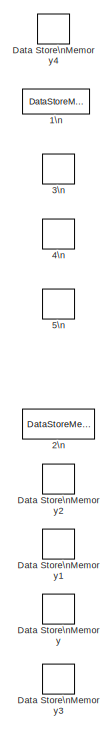
[diagram: Neural Network1 - part 1/2, middle right region]
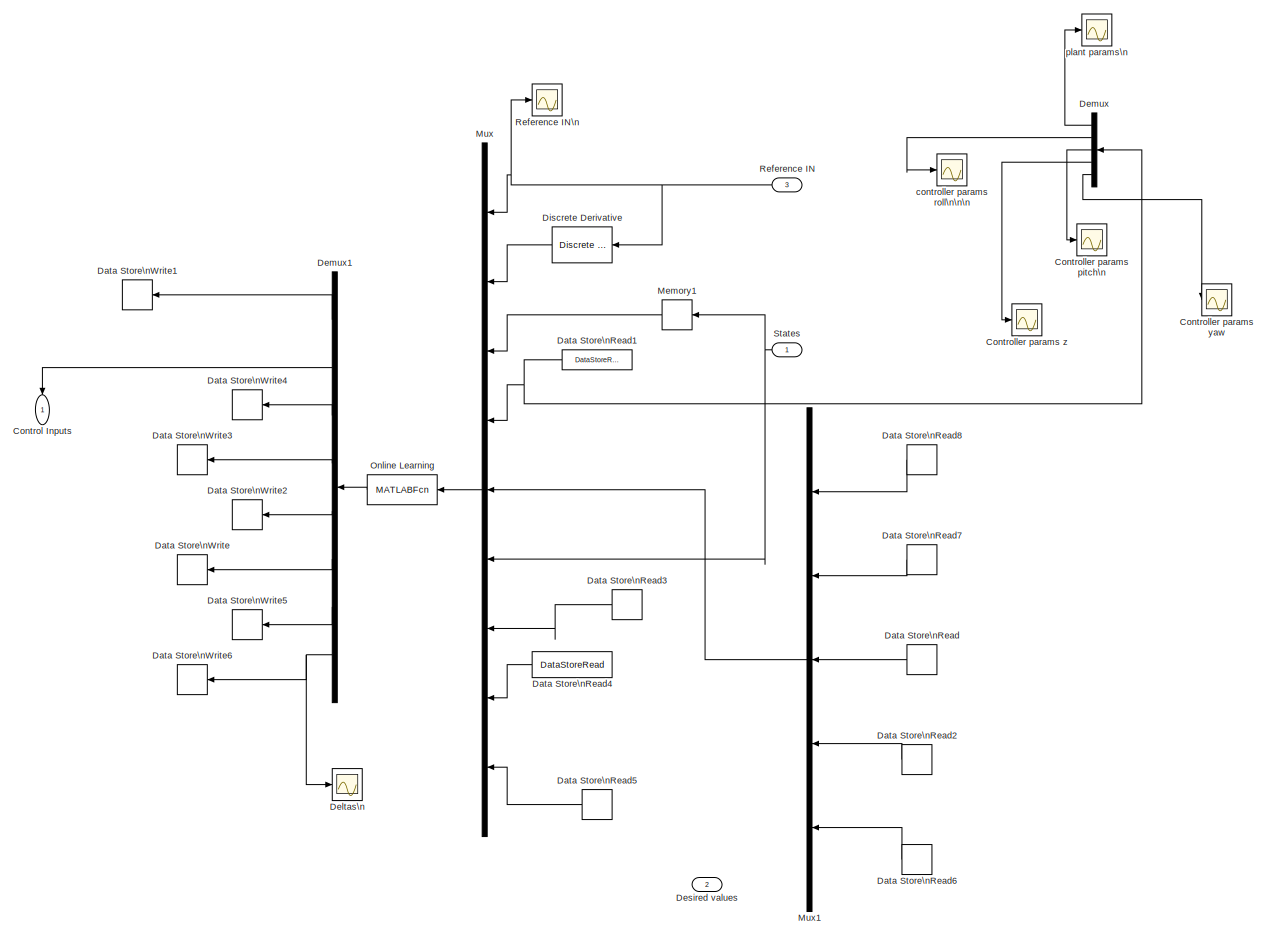
[diagram: Neural Network1 - part 2/2, center side, full height]
BLOCK [SubSystem] Neural Network1
  Ports = [3, 1]
  RequestExecContextInheritance = off
  SID = 711
BLOCK [DataStoreMemory] Neural Network1/1\n
  DataStoreName = nn_params
  InitialValue = ones((14+1)*44+(44+1)*44+(44+1)*4+20,1)
  ReadBeforeWriteMsg = warning
  SID = 715
  WriteAfterReadMsg = warning
  WriteAfterWriteMsg = warning
BLOCK [DataStoreMemory] Neural Network1/2\n
  DataStoreName = M
  InitialValue = zeros(16,1)
  ReadBeforeWriteMsg = warning
  SID = 716
  WriteAfterReadMsg = warning
  WriteAfterWriteMsg = warning
BLOCK [DataStoreMemory] Neural Network1/3\n
  DataStoreName = plant
  InitialValue = [14 44 4]
  ReadBeforeWriteMsg = warning
  SID = 717
  WriteAfterReadMsg = warning
  WriteAfterWriteMsg = warning
BLOCK [DataStoreMemory] Neural Network1/4\n
  DataStoreName = controller
  InitialValue = [4 12 1]
  ReadBeforeWriteMsg = warning
  SID = 718
  WriteAfterReadMsg = warning
  WriteAfterWriteMsg = warning
BLOCK [DataStoreMemory] Neural Network1/5\n
  DataStoreName = alpha
  InitialValue = [0.01 0.01 0.01 0.001 10 0 0 0]
  ReadBeforeWriteMsg = warning
  SID = 719
  WriteAfterReadMsg = warning
  WriteAfterWriteMsg = warning
BLOCK [Outport] Neural Network1/Control Inputs
  IconDisplay = Port number
  SID = 753
BLOCK [Scope] Neural Network1/Controller params pitch\n
  DataFormat = StructureWithTime
  Floating = off
  LimitDataPoints = off
  NumInputPorts = 1
  Ports = [1]
  SID = 803
  SampleTime = 0
  SaveName = ScopeData30
  ShowLegends = off
  YMax = 1
  YMin = -1.2
BLOCK [Scope] Neural Network1/Controller params yaw
  DataFormat = StructureWithTime
  Floating = off
  NumInputPorts = 1
  Ports = [1]
  SID = 835
  SampleTime = 0
  SaveName = ScopeData34
  ShowLegends = off
  YMax = 2.5
  YMin = -0.75
BLOCK [Scope] Neural Network1/Controller params z
  DataFormat = StructureWithTime
  Floating = off
  LimitDataPoints = off
  NumInputPorts = 1
  Ports = [1]
  SID = 804
  SampleTime = 0
  SaveName = ScopeData31
  ShowLegends = off
  YMax = 5.5
  YMin = -1.5
BLOCK [DataStoreMemory] Neural Network1/Data Store\nMemory
  DataStoreName = sumy
  InitialValue = zeros(16,1)
  ReadBeforeWriteMsg = warning
  SID = 805
  WriteAfterReadMsg = warning
  WriteAfterWriteMsg = warning
BLOCK [DataStoreMemory] Neural Network1/Data Store\nMemory1
  DataStoreName = std
  InitialValue = zeros(16,1)
  ReadBeforeWriteMsg = warning
  SID = 806
  WriteAfterReadMsg = warning
  WriteAfterWriteMsg = warning
BLOCK [DataStoreMemory] Neural Network1/Data Store\nMemory2
  DataStoreName = S
  InitialValue = zeros(16,1)
  ReadBeforeWriteMsg = warning
  SID = 807
  WriteAfterReadMsg = warning
  WriteAfterWriteMsg = warning
BLOCK [DataStoreMemory] Neural Network1/Data Store\nMemory3
  DataStoreName = k
  Dimensions = 1
  ReadBeforeWriteMsg = warning
  SID = 818
  WriteAfterReadMsg = warning
  WriteAfterWriteMsg = warning
BLOCK [DataStoreMemory] Neural Network1/Data Store\nMemory4
  DataStoreName = delta
  InitialValue = ones(20,1)
  ReadBeforeWriteMsg = warning
  SID = 824
  WriteAfterReadMsg = warning
  WriteAfterWriteMsg = warning
BLOCK [DataStoreRead] Neural Network1/Data Store\nRead
  DataStoreElements = S
  DataStoreName = S
  Ports = [0, 1]
  SID = 808
BLOCK [DataStoreRead] Neural Network1/Data Store\nRead1
  DataStoreElements = nn_params
  DataStoreName = nn_params
  Ports = [0, 1]
  SID = 723
  SampleTime = 0.01
BLOCK [DataStoreRead] Neural Network1/Data Store\nRead2
  DataStoreElements = std
  DataStoreName = std
  Ports = [0, 1]
  SID = 809
BLOCK [DataStoreRead] Neural Network1/Data Store\nRead3
  DataStoreElements = plant
  DataStoreName = plant
  Ports = [0, 1]
  SID = 725
  SampleTime = 0.01
BLOCK [DataStoreRead] Neural Network1/Data Store\nRead4
  DataStoreElements = controller
  DataStoreName = controller
  Ports = [0, 1]
  SID = 726
  SampleTime = 0.01
BLOCK [DataStoreRead] Neural Network1/Data Store\nRead5
  DataStoreElements = alpha
  DataStoreName = alpha
  Ports = [0, 1]
  SID = 727
  SampleTime = 0.01
BLOCK [DataStoreRead] Neural Network1/Data Store\nRead6
  DataStoreElements = sumy(:)
  DataStoreName = sumy
  Ports = [0, 1]
  SID = 810
BLOCK [DataStoreRead] Neural Network1/Data Store\nRead7
  DataStoreElements = M
  DataStoreName = M
  Ports = [0, 1]
  SID = 811
BLOCK [DataStoreRead] Neural Network1/Data Store\nRead8
  DataStoreElements = k
  DataStoreName = k
  Ports = [0, 1]
  SID = 817
BLOCK [DataStoreWrite] Neural Network1/Data Store\nWrite
  DataStoreElements = sumy(:)
  DataStoreName = sumy
  Ports = [1]
  SID = 813
BLOCK [DataStoreWrite] Neural Network1/Data Store\nWrite1
  DataStoreElements = nn_params
  DataStoreName = nn_params
  Ports = [1]
  SID = 732
BLOCK [DataStoreWrite] Neural Network1/Data Store\nWrite2
  DataStoreElements = std
  DataStoreName = std
  Ports = [1]
  SID = 814
BLOCK [DataStoreWrite] Neural Network1/Data Store\nWrite3
  DataStoreElements = S
  DataStoreName = S
  Ports = [1]
  SID = 815
BLOCK [DataStoreWrite] Neural Network1/Data Store\nWrite4
  DataStoreElements = M
  DataStoreName = M
  Ports = [1]
  SID = 816
BLOCK [DataStoreWrite] Neural Network1/Data Store\nWrite5
  DataStoreElements = k
  DataStoreName = k
  Ports = [1]
  SID = 819
BLOCK [DataStoreWrite] Neural Network1/Data Store\nWrite6
  DataStoreElements = delta(:)
  DataStoreName = delta
  Ports = [1]
  SID = 826
BLOCK [Scope] Neural Network1/Deltas\n
  Floating = off
  LimitDataPoints = off
  NumInputPorts = 1
  Ports = [1]
  SID = 834
  SaveName = ScopeData33
  ShowLegends = off
  YMax = 15
  YMin = -32.5
BLOCK [Demux] Neural Network1/Demux
  DisplayOption = bar
  Outputs = [((14+1)*44+(44+1)*44+(44+1)*4) 5 5 5 5]
  Ports = [1, 5]
  SID = 733
BLOCK [Demux] Neural Network1/Demux1
  DisplayOption = bar
  Outputs = [((14+1)*44+(44+1)*44+(44+1)*4+20) 4 16 16 16 16 1 20]
  Ports = [1, 8]
  SID = 754
BLOCK [Inport] Neural Network1/Desired values
  IconDisplay = Port number
  Port = 2
  SID = 713
BLOCK [Reference] Neural Network1/Discrete Derivative  REF=simulink/Discrete/Discrete Derivative
  DoSatur = off
  ICPrevScaledInput = 0.0
  InputProcessing = Inherited
  LockScale = off
  OutDataType = fixdt(1, 16)
  OutDataTypeStr = Inherit: Inherit via internal rule
  OutMax = []
  OutMin = []
  OutScaling = 2^-10
  OutputDataTypeScalingMode = Inherit via internal rule
  Ports = [1, 1]
  RndMeth = Floor
  SID = 831
  SourceBlock = simulink/Discrete/Discrete Derivative
  SourceType = Discrete Derivative
  gainval = 1.0
BLOCK [Memory] Neural Network1/Memory1
  InheritSampleTime = on
  SID = 738
BLOCK [Mux] Neural Network1/Mux
  DisplayOption = bar
  Inputs = 9
  Ports = [9, 1]
  SID = 739
BLOCK [Mux] Neural Network1/Mux1
  DisplayOption = bar
  Inputs = 5
  Ports = [5, 1]
  SID = 820
BLOCK [MATLABFcn] Neural Network1/Online Learning
  MATLABFcn = learnonline_trial
  Ports = [1, 1]
  SID = 744
BLOCK [Inport] Neural Network1/Reference IN
  IconDisplay = Port number
  Port = 3
  SID = 714
BLOCK [Scope] Neural Network1/Reference IN\n
  DataFormat = StructureWithTime
  Floating = off
  NumInputPorts = 1
  Ports = [1]
  SID = 746
  SampleTime = 0
  SaveName = ScopeData22
  ShowLegends = off
  YMax = 0
  YMin = -11
BLOCK [Inport] Neural Network1/States
  IconDisplay = Port number
  SID = 712
BLOCK [Scope] Neural Network1/controller params roll\n\n\n
  DataFormat = StructureWithTime
  Floating = off
  LimitDataPoints = off
  NumInputPorts = 1
  Ports = [1]
  SID = 747
  SampleTime = 0
  SaveName = ScopeData23
  ShowLegends = off
  YMax = 1
  YMin = -1.1
  ZoomMode = yonly
BLOCK [Scope] Neural Network1/plant params\n
  DataFormat = StructureWithTime
  Floating = off
  NumInputPorts = 1
  Ports = [1]
  SID = 750
  SampleTime = 0
  SaveName = ScopeData28
  ShowLegends = off
  TimeRange = 10
  YMax = 1.5
  YMin = -2
BLOCK [Scope] Pitch in
  DataFormat = StructureWithTime
  Floating = off
  LimitDataPoints = off
  NumInputPorts = 1
  Ports = [1]
  SID = 116
  SampleTime = 0
  SaveName = ScopeData2
  ShowLegends = off
  YMax = 0.005
  YMin = -0.004
BLOCK [Scope] Pitch v. Ref
  DataFormat = StructureWithTime
  Floating = off
  LimitDataPoints = off
  NumInputPorts = 1
  Ports = [1]
  SID = 850
  SampleTime = 0
  SaveName = ScopeData38
  ShowLegends = off
  YMax = 0.3
  YMin = 0
  ZoomMode = yonly
BLOCK [RateTransition] Rate Transition
  OutPortSampleTime = 0.01
  SID = 600
BLOCK [RateTransition] Rate Transition1
  OutPortSampleTime = 0.01
  SID = 601
BLOCK [RateTransition] Rate Transition2
  OutPortSampleTime = 0.01
  SID = 798
BLOCK [RateTransition] Rate Transition3
  OutPortSampleTime = 0.001
  SID = 799
BLOCK [RateTransition] Rate Transition4
  OutPortSampleTime = 0.01
  SID = 674
BLOCK [RateTransition] Rate Transition5
  OutPortSampleTime = 0.001
  SID = 675
BLOCK [RateTransition] Rate Transition6
  OutPortSampleTime = 0.1
  SID = 589
BLOCK [Scope] Roll in
  DataFormat = StructureWithTime
  Floating = off
  LimitDataPoints = off
  NumInputPorts = 1
  Ports = [1]
  SID = 114
  SampleTime = 0
  ShowLegends = off
  YMax = 0.005
  YMin = -0.005
BLOCK [Scope] Roll v. Ref
  DataFormat = StructureWithTime
  Floating = off
  LimitDataPoints = off
  NumInputPorts = 1
  Ports = [1]
  SID = 838
  SampleTime = 0
  SaveName = ScopeData35
  ShowLegends = off
  YMax = 0.5
  YMin = -0.2
  ZoomMode = yonly
BLOCK [Scope] Scope4
  DataFormat = StructureWithTime
  Floating = off
  LimitDataPoints = off
  NumInputPorts = 1
  Ports = [1]
  SID = 138
  SampleTime = 0
  SaveName = ScopeData4
  ShowLegends = off
BLOCK [SubSystem] State Scopes
  Ports = [1, 4]
  RequestExecContextInheritance = off
  SID = 146
BLOCK [Demux] State Scopes/Demux
  DisplayOption = bar
  Outputs = 12
  Ports = [1, 12]
  SID = 149
BLOCK [Reference] State Scopes/FlightGear\nPreconfigured\n6DoF Animation  REF=aerolibfltsims/FlightGear\nPreconfigured\n6DoF Animation
  AttributesFormatString = Version Selected: %<xFlightGearVersion>
  DestinationIpAddress = 127.0.0.1
  DestinationPort = 5502
  Ports = [1]
  SID = 280
  SampleTime = -1
  SourceBlock = aerolibfltsims/FlightGear\nPreconfigured\n6DoF Animation
  SourceType = FlightGearQuick6DoFAnimation
  xFlightGearVersion = v2.12
BLOCK [Gain] State Scopes/Gain
  Gain = -1
  OutDataTypeStr = Inherit: Inherit via internal rule
  ParamDataTypeStr = Inherit: Inherit via internal rule
  SID = 328
  SaturateOnIntegerOverflow = off
BLOCK [Gain] State Scopes/Gain1
  Gain = -1
  OutDataTypeStr = Inherit: Inherit via internal rule
  ParamDataTypeStr = Inherit: Inherit via internal rule
  SID = 329
  SaturateOnIntegerOverflow = off
BLOCK [Inport] State Scopes/In1
  IconDisplay = Port number
  SID = 147
BLOCK [MATLABFcn] State Scopes/Interpreted MATLAB\nFunction
  MATLABFcn = xconversion
  Ports = [1, 1]
  SID = 275
BLOCK [MATLABFcn] State Scopes/Interpreted MATLAB\nFunction1
  MATLABFcn = yconversion
  Ports = [1, 1]
  SID = 277
BLOCK [Mux] State Scopes/Mux
  DisplayOption = bar
  Inputs = 6
  Ports = [6, 1]
  SID = 281
BLOCK [Outport] State Scopes/Out1
  IconDisplay = Port number
  SID = 827
BLOCK [Outport] State Scopes/Pitch
  IconDisplay = Port number
  Port = 3
  SID = 845
BLOCK [RateTransition] State Scopes/Rate Transition
  OutPortSampleTime = 0.1
  SID = 585
BLOCK [RateTransition] State Scopes/Rate Transition1
  OutPortSampleTime = 0.1
  SID = 586
BLOCK [RateTransition] State Scopes/Rate Transition2
  OutPortSampleTime = 0.1
  SID = 587
BLOCK [RateTransition] State Scopes/Rate Transition3
  OutPortSampleTime = 0.1
  SID = 588
BLOCK [RateTransition] State Scopes/Rate Transition5
  Commented = on
  OutPortSampleTime = 0.1
  SID = 590
BLOCK [Outport] State Scopes/Roll\n
  IconDisplay = Port number
  Port = 2
  SID = 836
BLOCK [ToWorkspace] State Scopes/To Workspace
  FixptAsFi = on
  MaxDataPoints = 10000
  Ports = [1]
  SID = 591
  SampleTime = -1
  Save2DSignal = 2-D array (concatenate along first dimension)
  SaveFormat = Timeseries
  VariableName = roll
BLOCK [ToWorkspace] State Scopes/To Workspace1
  FixptAsFi = on
  MaxDataPoints = 10000
  Ports = [1]
  SID = 592
  SampleTime = -1
  Save2DSignal = 3-D array (concatenate along third dimension)
  SaveFormat = Timeseries
  VariableName = pitch
BLOCK [ToWorkspace] State Scopes/To Workspace2
  FixptAsFi = on
  MaxDataPoints = 10000
  Ports = [1]
  SID = 593
  SampleTime = -1
  Save2DSignal = 3-D array (concatenate along third dimension)
  SaveFormat = Timeseries
  VariableName = yaw
BLOCK [ToWorkspace] State Scopes/To Workspace3
  FixptAsFi = on
  MaxDataPoints = 10000
  Ports = [1]
  SID = 594
  SampleTime = -1
  Save2DSignal = 3-D array (concatenate along third dimension)
  SaveFormat = Timeseries
  VariableName = z
BLOCK [ToWorkspace] State Scopes/To Workspace4
  Commented = on
  FixptAsFi = on
  MaxDataPoints = 10000
  Ports = [1]
  SID = 595
  SampleTime = -1
  Save2DSignal = 3-D array (concatenate along third dimension)
  SaveFormat = Timeseries
  VariableName = y
BLOCK [Outport] State Scopes/Yaw
  IconDisplay = Port number
  Port = 4
  SID = 846
BLOCK [Scope] State Scopes/dotpitch
  DataFormat = StructureWithTime
  Floating = off
  LimitDataPoints = off
  NumInputPorts = 1
  Ports = [1]
  SID = 153
  SampleTime = 0
  SaveName = ScopeData8
  ShowLegends = off
  YMax = 0.1
  YMin = -0.07
BLOCK [Scope] State Scopes/dotroll
  DataFormat = StructureWithTime
  Floating = off
  LimitDataPoints = off
  NumInputPorts = 1
  Ports = [1]
  SID = 151
  SampleTime = 0
  SaveName = ScopeData6
  ShowLegends = off
  YMax = 0.35
  YMin = -0.35
BLOCK [Scope] State Scopes/dotx
  DataFormat = StructureWithTime
  Floating = off
  NumInputPorts = 1
  Ports = [1]
  SID = 159
  SampleTime = 0
  SaveName = ScopeData14
  ShowLegends = off
  YMax = 0.25
  YMin = -4
BLOCK [Scope] State Scopes/doty
  DataFormat = StructureWithTime
  Floating = off
  NumInputPorts = 1
  Ports = [1]
  SID = 161
  SampleTime = 0
  SaveName = ScopeData16
  ShowLegends = off
BLOCK [Scope] State Scopes/dotyaw
  DataFormat = StructureWithTime
  Floating = off
  NumInputPorts = 1
  Ports = [1]
  SID = 155
  SampleTime = 0
  SaveName = ScopeData10
  ShowLegends = off
  YMax = 0.275
  YMin = -0.175
BLOCK [Scope] State Scopes/dotz
  DataFormat = StructureWithTime
  Floating = off
  LimitDataPoints = off
  NumInputPorts = 1
  Ports = [1]
  SID = 157
  SampleTime = 0
  SaveName = ScopeData12
  ShowLegends = off
  YMax = 1.25
  YMin = -1.5
  ZoomMode = yonly
BLOCK [Scope] State Scopes/pitch
  Floating = off
  LimitDataPoints = off
  NumInputPorts = 1
  Ports = [1]
  SID = 152
  SampleTime = 0
  SaveName = sc_pitch
  ShowLegends = off
  YMax = 1
  YMin = -2
BLOCK [Scope] State Scopes/roll
  Floating = off
  LimitDataPoints = off
  NumInputPorts = 1
  Ports = [1]
  SID = 150
  SampleTime = 0
  SaveName = sc_roll
  ShowLegends = off
  YMax = 1.1
  YMin = 0
  ZoomMode = yonly
BLOCK [Scope] State Scopes/x
  DataFormat = StructureWithTime
  Floating = off
  LimitDataPoints = off
  NumInputPorts = 1
  Ports = [1]
  SID = 158
  SampleTime = 0
  SaveName = ScopeData13
  ShowLegends = off
BLOCK [Scope] State Scopes/y
  DataFormat = StructureWithTime
  Floating = off
  LimitDataPoints = off
  NumInputPorts = 1
  Ports = [1]
  SID = 160
  SampleTime = 0
  SaveName = ScopeData15
  ShowLegends = off
  TimeRange = 0.7999999999999972
  YMax = 2780
  YMin = 2600
BLOCK [Scope] State Scopes/yaw
  Floating = off
  LimitDataPoints = off
  NumInputPorts = 1
  Ports = [1]
  SID = 154
  SampleTime = 0
  SaveName = sc_yaw
  ShowLegends = off
  YMax = 2.5
  YMin = -50
  ZoomMode = yonly
BLOCK [Scope] State Scopes/z
  Floating = off
  LimitDataPoints = off
  NumInputPorts = 1
  Ports = [1]
  SID = 156
  SampleTime = 0
  SaveName = sc_z
  ShowLegends = off
  YMax = -9.65
  YMin = -10.6
  ZoomMode = yonly
BLOCK [Step] Step2
  IOType = siggen
  SID = 260
  SampleTime = 0
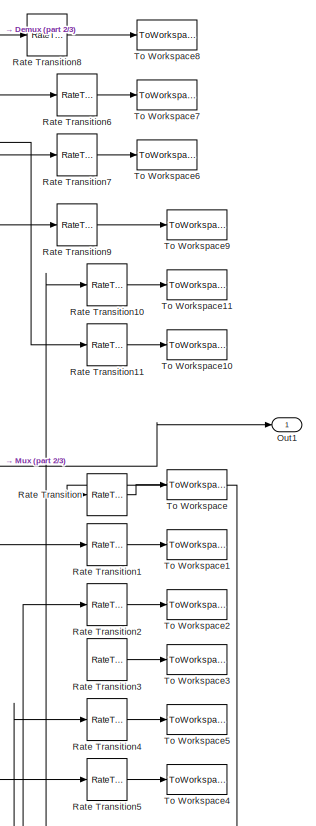
[diagram: Subsystem - part 1/3, top right region]
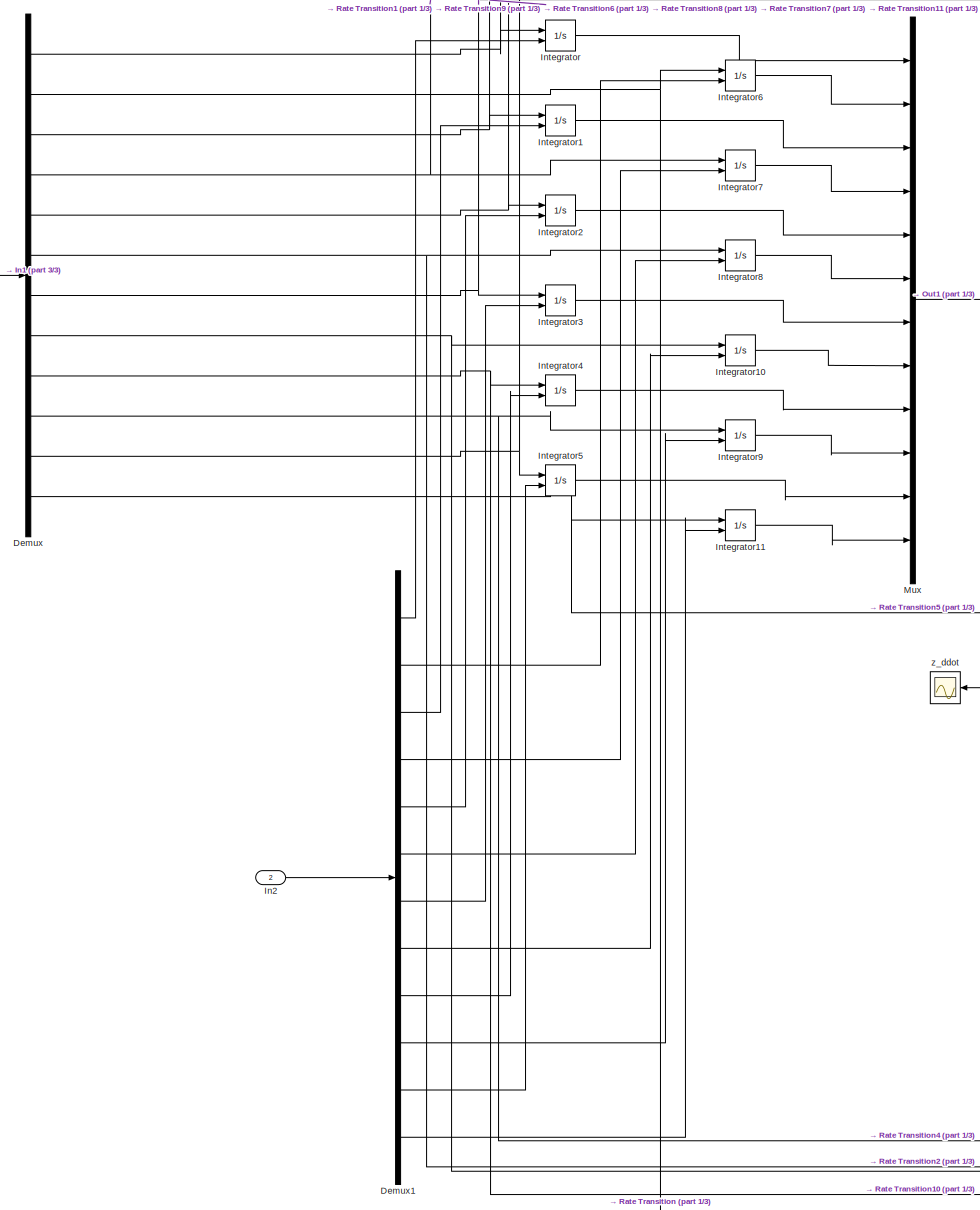
[diagram: Subsystem - part 2/3, center side, full height]
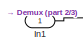
[diagram: Subsystem - part 3/3, middle left region]
BLOCK [SubSystem] Subsystem
  Ports = [2, 1]
  RequestExecContextInheritance = off
  SID = 118
BLOCK [Demux] Subsystem/Demux
  DisplayOption = bar
  Outputs = 12
  Ports = [1, 12]
  SID = 122
BLOCK [Demux] Subsystem/Demux1
  DisplayOption = bar
  Outputs = 12
  Ports = [1, 12]
  SID = 123
BLOCK [Inport] Subsystem/In1
  IconDisplay = Port number
  SID = 119
BLOCK [Inport] Subsystem/In2
  IconDisplay = Port number
  Port = 2
  SID = 121
BLOCK [Integrator] Subsystem/Integrator
  InitialConditionSource = external
  Ports = [2, 1]
  SID = 124
BLOCK [Integrator] Subsystem/Integrator1
  InitialConditionSource = external
  Ports = [2, 1]
  SID = 125
BLOCK [Integrator] Subsystem/Integrator10
  InitialConditionSource = external
  Ports = [2, 1]
  SID = 444
BLOCK [Integrator] Subsystem/Integrator11
  InitialConditionSource = external
  Ports = [2, 1]
  SID = 135
BLOCK [Integrator] Subsystem/Integrator2
  InitialConditionSource = external
  Ports = [2, 1]
  SID = 126
BLOCK [Integrator] Subsystem/Integrator3
  InitialConditionSource = external
  Ports = [2, 1]
  SID = 127
BLOCK [Integrator] Subsystem/Integrator4
  InitialConditionSource = external
  Ports = [2, 1]
  SID = 128
BLOCK [Integrator] Subsystem/Integrator5
  InitialConditionSource = external
  Ports = [2, 1]
  SID = 129
BLOCK [Integrator] Subsystem/Integrator6
  InitialConditionSource = external
  Ports = [2, 1]
  SID = 130
BLOCK [Integrator] Subsystem/Integrator7
  InitialConditionSource = external
  Ports = [2, 1]
  SID = 131
BLOCK [Integrator] Subsystem/Integrator8
  InitialConditionSource = external
  Ports = [2, 1]
  SID = 132
BLOCK [Integrator] Subsystem/Integrator9
  InitialConditionSource = external
  Ports = [2, 1]
  SID = 133
BLOCK [Mux] Subsystem/Mux
  DisplayOption = bar
  Inputs = 12
  Ports = [12, 1]
  SID = 136
BLOCK [Outport] Subsystem/Out1
  IconDisplay = Port number
  SID = 120
BLOCK [RateTransition] Subsystem/Rate Transition
  Commented = on
  OutPortSampleTime = 0.1
  SID = 474
BLOCK [RateTransition] Subsystem/Rate Transition1
  Commented = on
  OutPortSampleTime = 0.1
  SID = 475
BLOCK [RateTransition] Subsystem/Rate Transition10
  Commented = on
  OutPortSampleTime = 0.1
  SID = 571
BLOCK [RateTransition] Subsystem/Rate Transition11
  Commented = on
  OutPortSampleTime = 0.1
  SID = 572
BLOCK [RateTransition] Subsystem/Rate Transition2
  Commented = on
  OutPortSampleTime = 0.1
  SID = 476
BLOCK [RateTransition] Subsystem/Rate Transition3
  Commented = on
  OutPortSampleTime = 0.1
  SID = 477
BLOCK [RateTransition] Subsystem/Rate Transition4
  Commented = on
  OutPortSampleTime = 0.1
  SID = 478
BLOCK [RateTransition] Subsystem/Rate Transition5
  Commented = on
  OutPortSampleTime = 0.1
  SID = 479
BLOCK [RateTransition] Subsystem/Rate Transition6
  Commented = on
  OutPortSampleTime = 0.1
  SID = 579
BLOCK [RateTransition] Subsystem/Rate Transition7
  Commented = on
  OutPortSampleTime = 0.1
  SID = 580
BLOCK [RateTransition] Subsystem/Rate Transition8
  Commented = on
  OutPortSampleTime = 0.1
  SID = 581
BLOCK [RateTransition] Subsystem/Rate Transition9
  Commented = on
  OutPortSampleTime = 0.1
  SID = 570
BLOCK [ToWorkspace] Subsystem/To Workspace
  Commented = on
  FixptAsFi = on
  MaxDataPoints = 10000
  Ports = [1]
  SID = 461
  SampleTime = -1
  Save2DSignal = 2-D array (concatenate along first dimension)
  SaveFormat = Timeseries
  VariableName = rollacc
BLOCK [ToWorkspace] Subsystem/To Workspace1
  Commented = on
  FixptAsFi = on
  MaxDataPoints = 10000
  Ports = [1]
  SID = 462
  SampleTime = -1
  Save2DSignal = 3-D array (concatenate along third dimension)
  SaveFormat = Timeseries
  VariableName = pitchacc
BLOCK [ToWorkspace] Subsystem/To Workspace10
  Commented = on
  FixptAsFi = on
  MaxDataPoints = 10000
  Ports = [1]
  SID = 577
  SampleTime = -1
  Save2DSignal = 3-D array (concatenate along third dimension)
  SaveFormat = Timeseries
  VariableName = doty
BLOCK [ToWorkspace] Subsystem/To Workspace11
  Commented = on
  FixptAsFi = on
  MaxDataPoints = 10000
  Ports = [1]
  SID = 578
  SampleTime = -1
  Save2DSignal = 3-D array (concatenate along third dimension)
  SaveFormat = Timeseries
  VariableName = dotx
BLOCK [ToWorkspace] Subsystem/To Workspace2
  Commented = on
  FixptAsFi = on
  MaxDataPoints = 10000
  Ports = [1]
  SID = 463
  SampleTime = -1
  Save2DSignal = 3-D array (concatenate along third dimension)
  SaveFormat = Timeseries
  VariableName = yawacc
BLOCK [ToWorkspace] Subsystem/To Workspace3
  Commented = on
  FixptAsFi = on
  MaxDataPoints = 10000
  Ports = [1]
  SID = 464
  SampleTime = -1
  Save2DSignal = 3-D array (concatenate along third dimension)
  SaveFormat = Timeseries
  VariableName = z_acc
BLOCK [ToWorkspace] Subsystem/To Workspace4
  Commented = on
  FixptAsFi = on
  MaxDataPoints = 10000
  Ports = [1]
  SID = 465
  SampleTime = -1
  Save2DSignal = 3-D array (concatenate along third dimension)
  SaveFormat = Timeseries
  VariableName = y_acc
BLOCK [ToWorkspace] Subsystem/To Workspace5
  Commented = on
  FixptAsFi = on
  MaxDataPoints = 10000
  Ports = [1]
  SID = 466
  SampleTime = -1
  Save2DSignal = 3-D array (concatenate along third dimension)
  SaveFormat = Timeseries
  VariableName = x_acc
BLOCK [ToWorkspace] Subsystem/To Workspace6
  Commented = on
  FixptAsFi = on
  MaxDataPoints = 10000
  Ports = [1]
  SID = 582
  SampleTime = -1
  Save2DSignal = 3-D array (concatenate along third dimension)
  SaveFormat = Timeseries
  VariableName = dotyaw
BLOCK [ToWorkspace] Subsystem/To Workspace7
  Commented = on
  FixptAsFi = on
  MaxDataPoints = 10000
  Ports = [1]
  SID = 583
  SampleTime = -1
  Save2DSignal = 3-D array (concatenate along third dimension)
  SaveFormat = Timeseries
  VariableName = dotpitch
BLOCK [ToWorkspace] Subsystem/To Workspace8
  Commented = on
  FixptAsFi = on
  MaxDataPoints = 10000
  Ports = [1]
  SID = 584
  SampleTime = -1
  Save2DSignal = 3-D array (concatenate along third dimension)
  SaveFormat = Timeseries
  VariableName = dotroll
BLOCK [ToWorkspace] Subsystem/To Workspace9
  Commented = on
  FixptAsFi = on
  MaxDataPoints = 10000
  Ports = [1]
  SID = 576
  SampleTime = -1
  Save2DSignal = 3-D array (concatenate along third dimension)
  SaveFormat = Timeseries
  VariableName = dotz
BLOCK [Scope] Subsystem/z_ddot
  Floating = off
  NumInputPorts = 1
  Ports = [1]
  SID = 844
  SaveName = ScopeData36
  ShowLegends = off
  YMax = 2
  YMin = -3
BLOCK [ToWorkspace] To Workspace
  MaxDataPoints = 1
  Ports = [1]
  SID = 270
  SampleTime = -1
  SaveFormat = Structure
  VariableName = simout
BLOCK [ToWorkspace] To Workspace5
  FixptAsFi = on
  MaxDataPoints = 10000
  Ports = [1]
  SID = 596
  SampleTime = -1
  Save2DSignal = 3-D array (concatenate along third dimension)
  SaveFormat = Timeseries
  VariableName = referz
BLOCK [SubSystem] Transfer function
  Ports = [1, 1]
  RequestExecContextInheritance = off
  SID = 665
BLOCK [Sum] Transfer function/Add
  InputSameDT = off
  OutDataTypeStr = Inherit: Inherit via internal rule
  Ports = [2, 1]
  SID = 822
  SaturateOnIntegerOverflow = off
BLOCK [Constant] Transfer function/Constant
  SID = 823
  Value = 0
BLOCK [Demux] Transfer function/Demux3
  DisplayOption = bar
  Ports = [1, 4]
  SID = 663
BLOCK [Inport] Transfer function/Desired
  IconDisplay = Port number
  SID = 666
BLOCK [Mux] Transfer function/Mux1
  DisplayOption = bar
  Ports = [4, 1]
  SID = 664
BLOCK [Outport] Transfer function/Transfered
  IconDisplay = Port number
  SID = 667
BLOCK [Scope] Transfer function/observe\n
  DataFormat = StructureWithTime
  Floating = off
  NumInputPorts = 1
  Ports = [1]
  SID = 672
  SampleTime = 0
  SaveName = ScopeData19
  ShowLegends = off
  YMax = 3
  YMin = -3.5
BLOCK [TransferFcn] Transfer function/pitch
  Denominator = [0 1 0.5]
  Numerator = [0 0 0.5]
  SID = 668
BLOCK [TransferFcn] Transfer function/roll
  Denominator = [1 0.5]
  Numerator = [0 0.5]
  SID = 661
BLOCK [TransferFcn] Transfer function/yaw
  Denominator = [0 1 0.25]
  Numerator = [0 0 0.25]
  SID = 662
BLOCK [TransferFcn] Transfer function/z
  Denominator = [1 1]
  Numerator = [0 1]
  SID = 660
BLOCK [Scope] What we really want to know\n
  DataFormat = StructureWithTime
  Floating = off
  LimitDataPoints = off
  NumInputPorts = 1
  Ports = [1]
  SID = 828
  SampleTime = 0
  SaveName = ScopeData32
  ShowLegends = off
  YMax = 0
  YMin = -3.25
  ZoomMode = yonly
BLOCK [Scope] Yaw in
  DataFormat = StructureWithTime
  Floating = off
  LimitDataPoints = off
  NumInputPorts = 1
  Ports = [1]
  SID = 115
  SampleTime = 0
  SaveName = ScopeData1
  ShowLegends = off
  YMax = 0.5
  YMin = -0.45
BLOCK [Scope] Yaw v. Ref
  DataFormat = StructureWithTime
  Floating = off
  LimitDataPoints = off
  NumInputPorts = 1
  Ports = [1]
  SID = 849
  SampleTime = 0
  SaveName = ScopeData37
  ShowLegends = off
  TimeRange = 100
  YMax = 5.5
  YMin = -1.5
NET AERO/Demux:1 -> AERO/F & M:1, AERO/To Workspace:1
LINE AERO/Demux:2 -> AERO/Scope:1
LINE AERO/Demux:3 -> AERO/ThrustCoeff:1
LINE AERO/Interpreted MATLAB\nFunction:1 -> AERO/Demux:1
LINE AERO/Mux:1 -> AERO/Interpreted MATLAB\nFunction:1
LINE AERO/Omega:1 -> AERO/Mux:2
LINE AERO/States:1 -> AERO/Mux:1
LINE AERO/Step:1 -> AERO/Mux:3
LINE AERO/clk:1 -> AERO/Mux:4
LINE AERO:1 -> DYNAMICS:2
LINE AERO:2 -> Memory:1
LINE CONTROL/Demux:1 -> CONTROL/Rate Transition3:1
LINE CONTROL/Demux:2 -> CONTROL/Rate Transition2:1
LINE CONTROL/Demux:3 -> CONTROL/Rate Transition1:1
LINE CONTROL/Demux:4 -> CONTROL/Rate Transition:1
NET CONTROL/Mux:1 -> CONTROL/Demux:1, CONTROL/Out:1
LINE CONTROL/Rate Transition1:1 -> CONTROL/To Workspace1:1
LINE CONTROL/Rate Transition2:1 -> CONTROL/To Workspace2:1
LINE CONTROL/Rate Transition3:1 -> CONTROL/To Workspace3:1
LINE CONTROL/Rate Transition:1 -> CONTROL/To Workspace:1
NET CONTROL/States:1 -> CONTROL/pitchcontrol:1, CONTROL/rollcontrol:1, CONTROL/yawcontrol:1, CONTROL/zcontrol:1
LINE CONTROL/Zd:1 -> CONTROL/zcontrol:2
LINE CONTROL/pitchcontrol/Interpreted MATLAB\nFunction:1 -> CONTROL/pitchcontrol/PID Controller:1
LINE CONTROL/pitchcontrol/Mux:1 -> CONTROL/pitchcontrol/Interpreted MATLAB\nFunction:1
LINE CONTROL/pitchcontrol/PID Controller:1 -> CONTROL/pitchcontrol/Out1:1
LINE CONTROL/pitchcontrol/States:1 -> CONTROL/pitchcontrol/Mux:1
LINE CONTROL/pitchcontrol/pitchd:1 -> CONTROL/pitchcontrol/Mux:2
LINE CONTROL/pitchcontrol:1 -> CONTROL/Mux:2
LINE CONTROL/pitchd:1 -> CONTROL/pitchcontrol:2
LINE CONTROL/rollcontrol/Interpreted MATLAB\nFunction:1 -> CONTROL/rollcontrol/PID Controller:1
LINE CONTROL/rollcontrol/Mux:1 -> CONTROL/rollcontrol/Interpreted MATLAB\nFunction:1
LINE CONTROL/rollcontrol/PID Controller:1 -> CONTROL/rollcontrol/Out1:1
LINE CONTROL/rollcontrol/States:1 -> CONTROL/rollcontrol/Mux:1
LINE CONTROL/rollcontrol/rolld:1 -> CONTROL/rollcontrol/Mux:2
LINE CONTROL/rollcontrol:1 -> CONTROL/Mux:1
LINE CONTROL/rolld:1 -> CONTROL/rollcontrol:2
NET CONTROL/yawcontrol/Interpreted MATLAB\nFunction:1 -> CONTROL/yawcontrol/PID Controller:1, CONTROL/yawcontrol/Scope:1
LINE CONTROL/yawcontrol/Mux:1 -> CONTROL/yawcontrol/Interpreted MATLAB\nFunction:1
LINE CONTROL/yawcontrol/PID Controller:1 -> CONTROL/yawcontrol/Out1:1
LINE CONTROL/yawcontrol/States:1 -> CONTROL/yawcontrol/Mux:1
LINE CONTROL/yawcontrol/yawd:1 -> CONTROL/yawcontrol/Mux:2
LINE CONTROL/yawcontrol:1 -> CONTROL/Mux:4
LINE CONTROL/yawd:1 -> CONTROL/yawcontrol:2
NET CONTROL/zcontrol/Interpreted MATLAB\nFunction1:1 -> CONTROL/zcontrol/Scope:1, CONTROL/zcontrol/z rate control:1
NET CONTROL/zcontrol/Interpreted MATLAB\nFunction:1 -> CONTROL/zcontrol/Scope2:1, CONTROL/zcontrol/z control:1
LINE CONTROL/zcontrol/Mux1:1 -> CONTROL/zcontrol/Interpreted MATLAB\nFunction1:1
LINE CONTROL/zcontrol/Mux:1 -> CONTROL/zcontrol/Interpreted MATLAB\nFunction:1
NET CONTROL/zcontrol/States:1 -> CONTROL/zcontrol/Mux1:1, CONTROL/zcontrol/Mux:1
LINE CONTROL/zcontrol/Zd:1 -> CONTROL/zcontrol/Mux:2
NET CONTROL/zcontrol/z control:1 -> CONTROL/zcontrol/Mux1:2, CONTROL/zcontrol/Scope1:1
LINE CONTROL/zcontrol/z rate control:1 -> CONTROL/zcontrol/Out1:1
LINE CONTROL/zcontrol:1 -> CONTROL/Mux:3
NET Clock:1 -> AERO:3, DYNAMICS:4, To Workspace:1
LINE DYNAMICS/Forces and Moments:1 -> DYNAMICS/Mux:2
LINE DYNAMICS/In1:1 -> DYNAMICS/Mux:4
LINE DYNAMICS/Interpreted MATLAB\nFunction:1 -> DYNAMICS/Acc and Vel:1
LINE DYNAMICS/Mux:1 -> DYNAMICS/Interpreted MATLAB\nFunction:1
LINE DYNAMICS/Omega:1 -> DYNAMICS/Mux:3
LINE DYNAMICS/States:1 -> DYNAMICS/Mux:1
LINE DYNAMICS:1 -> Demux1:1
LINE Data Store\nRead:1 -> Interpreted MATLAB\nFunction1:1
LINE Demux1:1 -> Subsystem:1
LINE Demux1:2 -> Scope4:1
NET Demux2:1 -> Rate Transition2:1, Transfer function:1
LINE Demux2:2 -> Rate Transition1:1
LINE Demux3:1 -> Mux2:2
LINE Demux3:2 -> Mux4:2
LINE Demux3:3 -> Mux3:2
LINE Demux3:4 -> Mux1:2
LINE Demux:1 -> Roll in:1
LINE Demux:2 -> Pitch in:1
LINE Demux:3 -> Yaw in:1
LINE Demux:4 -> Desired thrust:1
LINE Initial Conditions/Mux:1 -> Initial Conditions/Out1:1
LINE Initial Conditions/dotpitch:1 -> Initial Conditions/Mux:4
LINE Initial Conditions/dotroll:1 -> Initial Conditions/Mux:2
LINE Initial Conditions/dotx:1 -> Initial Conditions/Mux:10
LINE Initial Conditions/doty:1 -> Initial Conditions/Mux:12
LINE Initial Conditions/dotyaw:1 -> Initial Conditions/Mux:6
LINE Initial Conditions/dotz:1 -> Initial Conditions/Mux:8
LINE Initial Conditions/pitch:1 -> Initial Conditions/Mux:3
LINE Initial Conditions/roll:1 -> Initial Conditions/Mux:1
LINE Initial Conditions/x:1 -> Initial Conditions/Mux:9
LINE Initial Conditions/y:1 -> Initial Conditions/Mux:11
LINE Initial Conditions/yaw:1 -> Initial Conditions/Mux:5
LINE Initial Conditions/z:1 -> Initial Conditions/Mux:7
LINE Initial Conditions:1 -> Subsystem:2
LINE Interpreted MATLAB\nFunction1:1 -> Rate Transition5:1
LINE Memory:1 -> Motors1:2
LINE Mix:1 -> Motors1:1
LINE Motors1/Demux:1 -> Motors1/motor1:1
LINE Motors1/Demux:2 -> Motors1/motor2:1
LINE Motors1/Demux:3 -> Motors1/motor3:1
NET Motors1/Demux:4 -> Motors1/Scope1:1, Motors1/motor4:1
LINE Motors1/DesiredThrust:1 -> Motors1/Demux:1
NET Motors1/Saturation1:1 -> Motors1/Omega2:1, Motors1/omega2:1
NET Motors1/Saturation2:1 -> Motors1/Omega3:1, Motors1/omega3:1
NET Motors1/Saturation3:1 -> Motors1/Omega4:1, Motors1/omega4:1
NET Motors1/Saturation:1 -> Motors1/Omega1:1, Motors1/omega1:1
NET Motors1/ThrustCOeff:1 -> Motors1/Scope:1, Motors1/motor1:2, Motors1/motor2:2, Motors1/motor3:2, Motors1/motor4:2
LINE Motors1/motor1/DesiredThrust:1 -> Motors1/motor1/Mux:1
LINE Motors1/motor1/Interpreted MATLAB\nFunction:1 -> Motors1/motor1/Transfer Fcn:1
LINE Motors1/motor1/Mux:1 -> Motors1/motor1/Interpreted MATLAB\nFunction:1
LINE Motors1/motor1/ThrustCoeff:1 -> Motors1/motor1/Mux:2
LINE Motors1/motor1/Transfer Fcn:1 -> Motors1/motor1/Actual Omega:1
LINE Motors1/motor1:1 -> Motors1/Saturation:1
LINE Motors1/motor2/DesiredThrust:1 -> Motors1/motor2/Mux:1
LINE Motors1/motor2/Interpreted MATLAB\nFunction:1 -> Motors1/motor2/Transfer Fcn:1
LINE Motors1/motor2/Mux:1 -> Motors1/motor2/Interpreted MATLAB\nFunction:1
LINE Motors1/motor2/ThrustCoeff:1 -> Motors1/motor2/Mux:2
LINE Motors1/motor2/Transfer Fcn:1 -> Motors1/motor2/Actual Omega:1
LINE Motors1/motor2:1 -> Motors1/Saturation1:1
LINE Motors1/motor3/DesiredThrust:1 -> Motors1/motor3/Mux:1
NET Motors1/motor3/Interpreted MATLAB\nFunction:1 -> Motors1/motor3/Transfer Fcn:1, Motors1/motor3/desired omega:1
LINE Motors1/motor3/Mux:1 -> Motors1/motor3/Interpreted MATLAB\nFunction:1
LINE Motors1/motor3/ThrustCoeff:1 -> Motors1/motor3/Mux:2
LINE Motors1/motor3/Transfer Fcn:1 -> Motors1/motor3/Actual Omega:1
LINE Motors1/motor3:1 -> Motors1/Saturation2:1
LINE Motors1/motor4/DesiredThrust:1 -> Motors1/motor4/Mux:1
LINE Motors1/motor4/Mux:1 -> Motors1/motor4/motor4:1
LINE Motors1/motor4/ThrustCoeff:1 -> Motors1/motor4/Mux:2
LINE Motors1/motor4/Transfer Fcn:1 -> Motors1/motor4/Actual Omega:1
LINE Motors1/motor4/motor4:1 -> Motors1/motor4/Transfer Fcn:1
LINE Motors1/motor4:1 -> Motors1/Saturation3:1
LINE Motors1:1 -> Mux:1
LINE Motors1:2 -> Mux:2
LINE Motors1:3 -> Mux:3
LINE Motors1:4 -> Mux:4
LINE Mux1:1 -> What we really want to know\n:1
LINE Mux2:1 -> Roll v. Ref:1
LINE Mux3:1 -> Yaw v. Ref:1
LINE Mux4:1 -> Pitch v. Ref:1
NET Mux:1 -> AERO:2, DYNAMICS:3
NET Neural Network/Controller ANN:1 -> Neural Network/Control Inputs:1, Neural Network/Mux1:1
LINE Neural Network/Data Store\nRead1:1 -> Neural Network/Mux:4
LINE Neural Network/Data Store\nRead2:1 -> Neural Network/Demux:1
LINE Neural Network/Data Store\nRead3:1 -> Neural Network/Mux:6
LINE Neural Network/Data Store\nRead4:1 -> Neural Network/Mux:7
LINE Neural Network/Data Store\nRead5:1 -> Neural Network/Mux:9
LINE Neural Network/Data Store\nRead6:1 -> Neural Network/Mux1:4
LINE Neural Network/Data Store\nRead7:1 -> Neural Network/Mux3:1
LINE Neural Network/Data Store\nRead8:1 -> Neural Network/Mux3:2
LINE Neural Network/Data Store\nRead9:1 -> Neural Network/Memory:1
LINE Neural Network/Data Store\nRead:1 -> Neural Network/Mux2:4
LINE Neural Network/Demux1:1 -> Neural Network/Mux4:5
LINE Neural Network/Demux1:3 -> Neural Network/Mux4:4
LINE Neural Network/Demux1:5 -> Neural Network/Mux4:3
LINE Neural Network/Demux1:7 -> Neural Network/Mux4:2
LINE Neural Network/Demux3:1 -> Neural Network/somenumber:1
LINE Neural Network/Demux3:2 -> Neural Network/nn_params:1
NET Neural Network/Demux:1 -> Neural Network/Mux1:3, Neural Network/plant params\n:1
NET Neural Network/Demux:2 -> Neural Network/Mux2:3, Neural Network/controller params\n:1
NET Neural Network/Desired values:1 -> Neural Network/Mux2:2, Neural Network/Mux:8
LINE Neural Network/Layer values:1 -> Neural Network/Demux3:1
LINE Neural Network/Memory1:1 -> Neural Network/Mux:3
NET Neural Network/Memory:1 -> Neural Network/Mux4:1, Neural Network/Mux:2
LINE Neural Network/Mux1:1 -> Neural Network/Plant Model NN:1
LINE Neural Network/Mux2:1 -> Neural Network/Controller ANN:1
LINE Neural Network/Mux3:1 -> Neural Network/Layer values:1
LINE Neural Network/Mux4:1 -> Neural Network/modelerror\n:1
LINE Neural Network/Mux:1 -> Neural Network/Online Learning:1
LINE Neural Network/Online Learning:1 -> Neural Network/Data Store\nWrite1:1
LINE Neural Network/Plant Model NN:1 -> Neural Network/pred_states:1
NET Neural Network/Reference IN:1 -> Neural Network/Mux:1, Neural Network/Reference IN\n:1
NET Neural Network/States:1 -> Neural Network/Demux1:1, Neural Network/Memory1:1, Neural Network/Mux1:2, Neural Network/Mux2:1, Neural Network/Mux:5
NET Neural Network1/Data Store\nRead1:1 -> Neural Network1/Demux:1, Neural Network1/Mux:4
LINE Neural Network1/Data Store\nRead2:1 -> Neural Network1/Mux1:4
LINE Neural Network1/Data Store\nRead3:1 -> Neural Network1/Mux:7
LINE Neural Network1/Data Store\nRead4:1 -> Neural Network1/Mux:8
LINE Neural Network1/Data Store\nRead5:1 -> Neural Network1/Mux:9
LINE Neural Network1/Data Store\nRead6:1 -> Neural Network1/Mux1:5
LINE Neural Network1/Data Store\nRead7:1 -> Neural Network1/Mux1:2
LINE Neural Network1/Data Store\nRead8:1 -> Neural Network1/Mux1:1
LINE Neural Network1/Data Store\nRead:1 -> Neural Network1/Mux1:3
LINE Neural Network1/Demux1:1 -> Neural Network1/Data Store\nWrite1:1
LINE Neural Network1/Demux1:2 -> Neural Network1/Control Inputs:1
LINE Neural Network1/Demux1:3 -> Neural Network1/Data Store\nWrite4:1
LINE Neural Network1/Demux1:4 -> Neural Network1/Data Store\nWrite3:1
LINE Neural Network1/Demux1:5 -> Neural Network1/Data Store\nWrite2:1
LINE Neural Network1/Demux1:6 -> Neural Network1/Data Store\nWrite:1
LINE Neural Network1/Demux1:7 -> Neural Network1/Data Store\nWrite5:1
NET Neural Network1/Demux1:8 -> Neural Network1/Data Store\nWrite6:1, Neural Network1/Deltas\n:1
LINE Neural Network1/Demux:1 -> Neural Network1/plant params\n:1
LINE Neural Network1/Demux:2 -> Neural Network1/controller params roll\n\n\n:1
LINE Neural Network1/Demux:3 -> Neural Network1/Controller params pitch\n:1
LINE Neural Network1/Demux:4 -> Neural Network1/Controller params z:1
LINE Neural Network1/Demux:5 -> Neural Network1/Controller params yaw:1
LINE Neural Network1/Discrete Derivative:1 -> Neural Network1/Mux:2
LINE Neural Network1/Memory1:1 -> Neural Network1/Mux:3
LINE Neural Network1/Mux1:1 -> Neural Network1/Mux:5
LINE Neural Network1/Mux:1 -> Neural Network1/Online Learning:1
LINE Neural Network1/Online Learning:1 -> Neural Network1/Demux1:1
NET Neural Network1/Reference IN:1 -> Neural Network1/Discrete Derivative:1, Neural Network1/Mux:1, Neural Network1/Reference IN\n:1
NET Neural Network1/States:1 -> Neural Network1/Memory1:1, Neural Network1/Mux:6
NET Neural Network1:1 -> Demux:1, Rate Transition3:1
LINE Rate Transition1:1 -> Data Store\nWrite:1
LINE Rate Transition2:1 -> Neural Network1:2
LINE Rate Transition3:1 -> Mix:1
LINE Rate Transition4:1 -> Neural Network1:1
LINE Rate Transition5:1 -> Demux2:1
LINE Rate Transition6:1 -> To Workspace5:1
NET Rate Transition:1 -> Neural Network1:3, Rate Transition6:1
NET State Scopes/Demux:1 -> State Scopes/Mux:4, State Scopes/Rate Transition:1, State Scopes/Roll\n:1, State Scopes/roll:1
LINE State Scopes/Demux:10 -> State Scopes/dotx:1
NET State Scopes/Demux:11 -> State Scopes/Interpreted MATLAB\nFunction1:1, State Scopes/Rate Transition5:1, State Scopes/y:1
LINE State Scopes/Demux:12 -> State Scopes/doty:1
LINE State Scopes/Demux:2 -> State Scopes/dotroll:1
NET State Scopes/Demux:3 -> State Scopes/Gain:1, State Scopes/Pitch:1, State Scopes/Rate Transition1:1, State Scopes/pitch:1
LINE State Scopes/Demux:4 -> State Scopes/dotpitch:1
NET State Scopes/Demux:5 -> State Scopes/Gain1:1, State Scopes/Rate Transition2:1, State Scopes/Yaw:1, State Scopes/yaw:1
LINE State Scopes/Demux:6 -> State Scopes/dotyaw:1
NET State Scopes/Demux:7 -> State Scopes/Mux:3, State Scopes/Out1:1, State Scopes/Rate Transition3:1, State Scopes/z:1
LINE State Scopes/Demux:8 -> State Scopes/dotz:1
NET State Scopes/Demux:9 -> State Scopes/Interpreted MATLAB\nFunction:1, State Scopes/x:1
LINE State Scopes/Gain1:1 -> State Scopes/Mux:6
LINE State Scopes/Gain:1 -> State Scopes/Mux:5
LINE State Scopes/In1:1 -> State Scopes/Demux:1
LINE State Scopes/Interpreted MATLAB\nFunction1:1 -> State Scopes/Mux:2
LINE State Scopes/Interpreted MATLAB\nFunction:1 -> State Scopes/Mux:1
LINE State Scopes/Mux:1 -> State Scopes/FlightGear\nPreconfigured\n6DoF Animation:1
LINE State Scopes/Rate Transition1:1 -> State Scopes/To Workspace1:1
LINE State Scopes/Rate Transition2:1 -> State Scopes/To Workspace2:1
LINE State Scopes/Rate Transition3:1 -> State Scopes/To Workspace3:1
LINE State Scopes/Rate Transition5:1 -> State Scopes/To Workspace4:1
LINE State Scopes/Rate Transition:1 -> State Scopes/To Workspace:1
LINE State Scopes:1 -> Mux1:1
LINE State Scopes:2 -> Mux2:1
LINE State Scopes:3 -> Mux4:1
LINE State Scopes:4 -> Mux3:1
LINE Subsystem/Demux1:1 -> Subsystem/Integrator:2
LINE Subsystem/Demux1:10 -> Subsystem/Integrator9:2
LINE Subsystem/Demux1:11 -> Subsystem/Integrator5:2
LINE Subsystem/Demux1:12 -> Subsystem/Integrator11:2
LINE Subsystem/Demux1:2 -> Subsystem/Integrator6:2
LINE Subsystem/Demux1:3 -> Subsystem/Integrator1:2
LINE Subsystem/Demux1:4 -> Subsystem/Integrator7:2
LINE Subsystem/Demux1:5 -> Subsystem/Integrator2:2
LINE Subsystem/Demux1:6 -> Subsystem/Integrator8:2
LINE Subsystem/Demux1:7 -> Subsystem/Integrator3:2
LINE Subsystem/Demux1:8 -> Subsystem/Integrator10:2
LINE Subsystem/Demux1:9 -> Subsystem/Integrator4:2
NET Subsystem/Demux:1 -> Subsystem/Integrator:1, Subsystem/Rate Transition8:1
NET Subsystem/Demux:10 -> Subsystem/Integrator9:1, Subsystem/Rate Transition4:1
NET Subsystem/Demux:11 -> Subsystem/Integrator5:1, Subsystem/Rate Transition11:1
NET Subsystem/Demux:12 -> Subsystem/Integrator11:1, Subsystem/Rate Transition5:1
NET Subsystem/Demux:2 -> Subsystem/Integrator6:1, Subsystem/Rate Transition:1
NET Subsystem/Demux:3 -> Subsystem/Integrator1:1, Subsystem/Rate Transition6:1
NET Subsystem/Demux:4 -> Subsystem/Integrator7:1, Subsystem/Rate Transition1:1
NET Subsystem/Demux:5 -> Subsystem/Integrator2:1, Subsystem/Rate Transition7:1
NET Subsystem/Demux:6 -> Subsystem/Integrator8:1, Subsystem/Rate Transition2:1
NET Subsystem/Demux:7 -> Subsystem/Integrator3:1, Subsystem/Rate Transition9:1
NET Subsystem/Demux:8 -> Subsystem/Integrator10:1, Subsystem/z_ddot:1
NET Subsystem/Demux:9 -> Subsystem/Integrator4:1, Subsystem/Rate Transition10:1
LINE Subsystem/In1:1 -> Subsystem/Demux:1
LINE Subsystem/In2:1 -> Subsystem/Demux1:1
LINE Subsystem/Integrator10:1 -> Subsystem/Mux:8
LINE Subsystem/Integrator11:1 -> Subsystem/Mux:12
LINE Subsystem/Integrator1:1 -> Subsystem/Mux:3
LINE Subsystem/Integrator2:1 -> Subsystem/Mux:5
LINE Subsystem/Integrator3:1 -> Subsystem/Mux:7
LINE Subsystem/Integrator4:1 -> Subsystem/Mux:9
LINE Subsystem/Integrator5:1 -> Subsystem/Mux:11
LINE Subsystem/Integrator6:1 -> Subsystem/Mux:2
LINE Subsystem/Integrator7:1 -> Subsystem/Mux:4
LINE Subsystem/Integrator8:1 -> Subsystem/Mux:6
LINE Subsystem/Integrator9:1 -> Subsystem/Mux:10
LINE Subsystem/Integrator:1 -> Subsystem/Mux:1
LINE Subsystem/Mux:1 -> Subsystem/Out1:1
LINE Subsystem/Rate Transition10:1 -> Subsystem/To Workspace11:1
LINE Subsystem/Rate Transition11:1 -> Subsystem/To Workspace10:1
LINE Subsystem/Rate Transition1:1 -> Subsystem/To Workspace1:1
LINE Subsystem/Rate Transition2:1 -> Subsystem/To Workspace2:1
LINE Subsystem/Rate Transition3:1 -> Subsystem/To Workspace3:1
LINE Subsystem/Rate Transition4:1 -> Subsystem/To Workspace5:1
LINE Subsystem/Rate Transition5:1 -> Subsystem/To Workspace4:1
LINE Subsystem/Rate Transition6:1 -> Subsystem/To Workspace7:1
LINE Subsystem/Rate Transition7:1 -> Subsystem/To Workspace6:1
LINE Subsystem/Rate Transition8:1 -> Subsystem/To Workspace8:1
LINE Subsystem/Rate Transition9:1 -> Subsystem/To Workspace9:1
LINE Subsystem/Rate Transition:1 -> Subsystem/To Workspace:1
NET Subsystem:1 -> AERO:1, DYNAMICS:1, Rate Transition4:1, State Scopes:1
LINE Transfer function/Add:1 -> Transfer function/Mux1:4
LINE Transfer function/Constant:1 -> Transfer function/Add:2
LINE Transfer function/Demux3:1 -> Transfer function/roll:1
LINE Transfer function/Demux3:2 -> Transfer function/pitch:1
LINE Transfer function/Demux3:3 -> Transfer function/yaw:1
LINE Transfer function/Demux3:4 -> Transfer function/z:1
LINE Transfer function/Desired:1 -> Transfer function/Demux3:1
LINE Transfer function/Mux1:1 -> Transfer function/Transfered:1
LINE Transfer function/pitch:1 -> Transfer function/Mux1:2
LINE Transfer function/roll:1 -> Transfer function/Mux1:1
NET Transfer function/yaw:1 -> Transfer function/Mux1:3, Transfer function/observe\n:1
LINE Transfer function/z:1 -> Transfer function/Add:1
NET Transfer function:1 -> Demux3:1, Rate Transition:1
note: NET lines group one-source signal fan-out (src -> all destinations, sorted); 1:1 wires keep LINE
